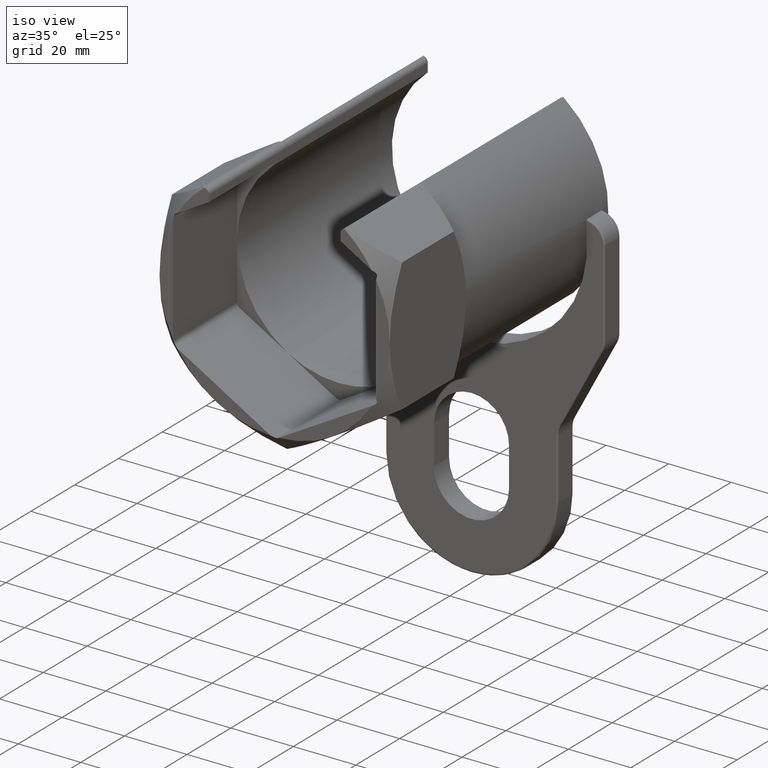
[diagram: clean part render]
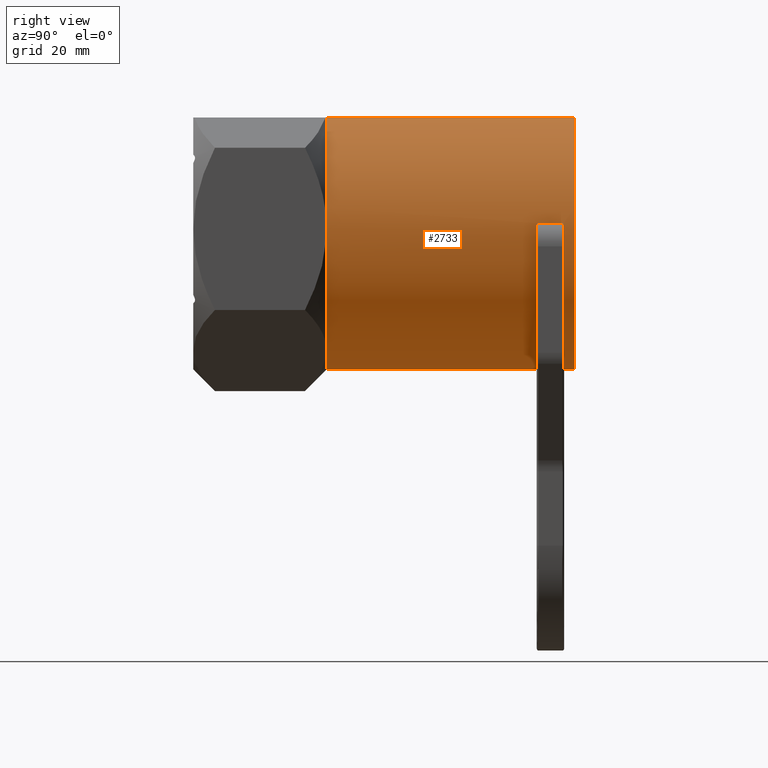
[diagram: tour spotlight — one face highlighted and labeled with its STEP entity id]
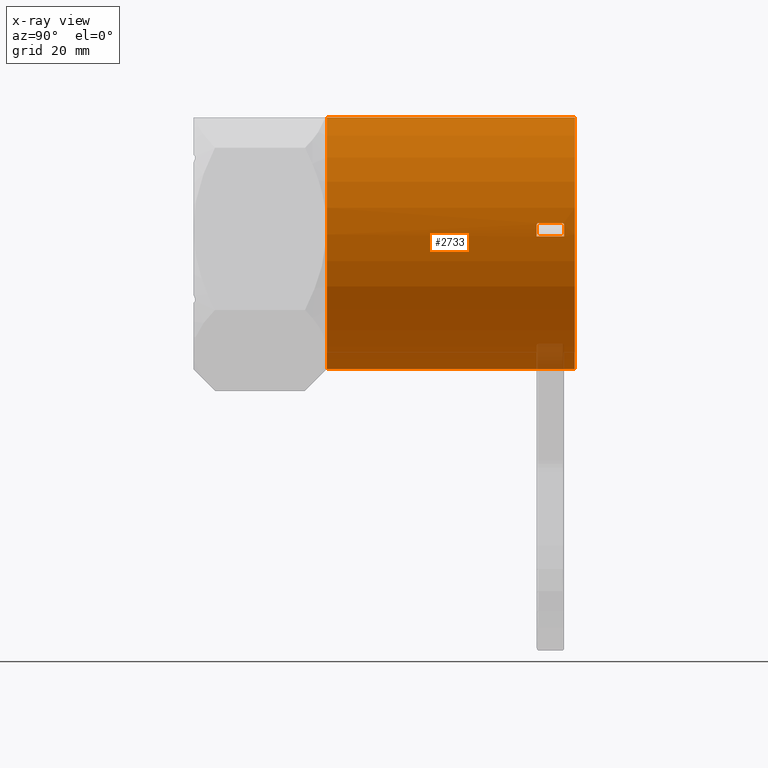
[diagram: x-ray of the same camera — body ghosted, this tour face saturated]
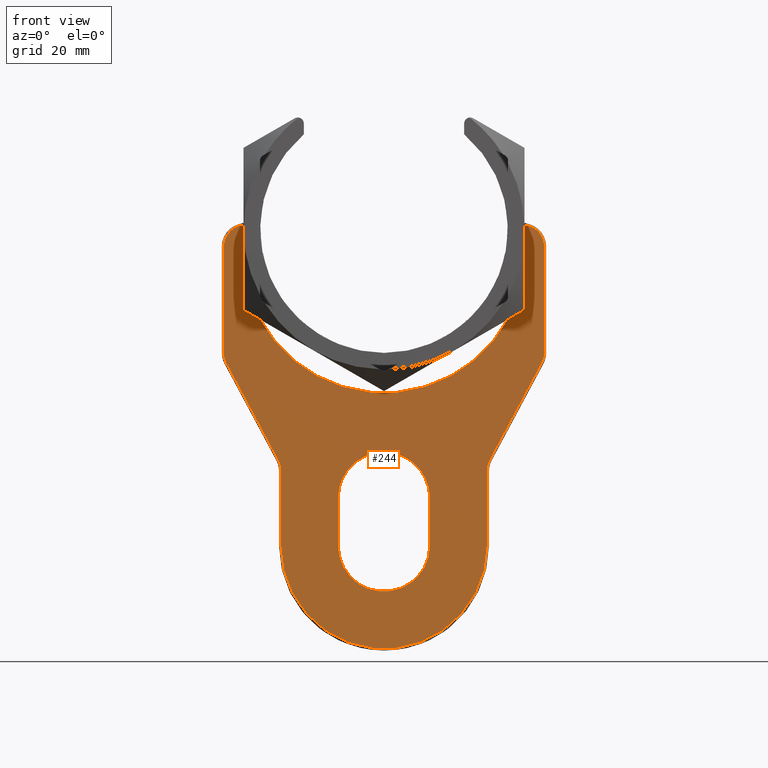
[diagram: tour spotlight — one face highlighted and labeled with its STEP entity id]
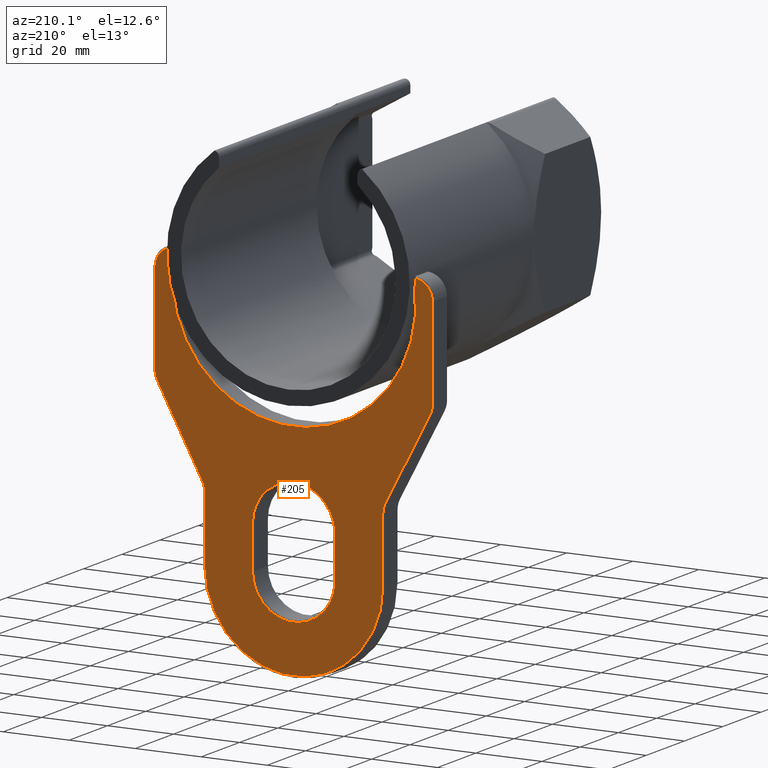
[diagram: tour spotlight — one face highlighted and labeled with its STEP entity id]
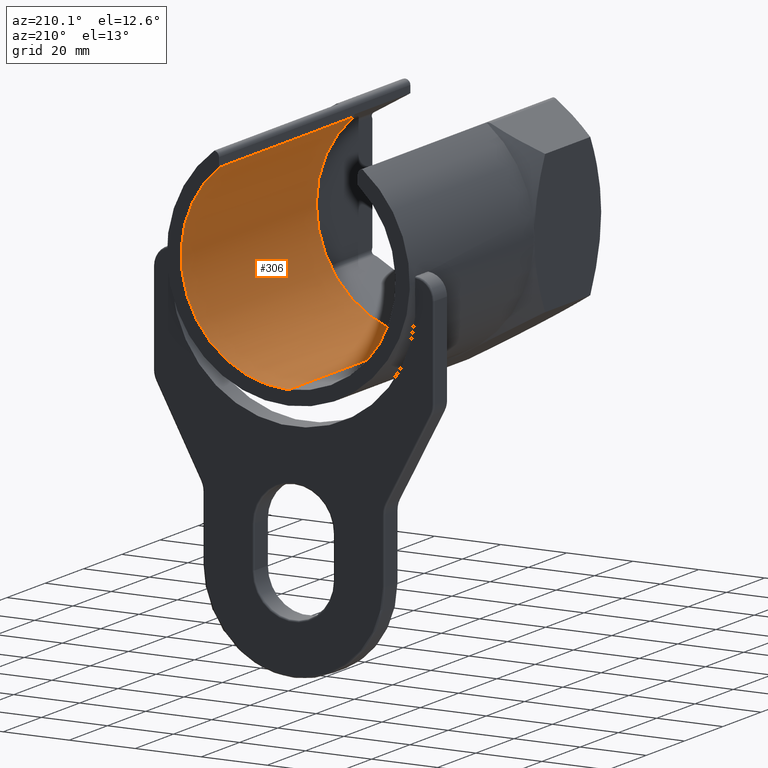
[diagram: tour spotlight — one face highlighted and labeled with its STEP entity id]
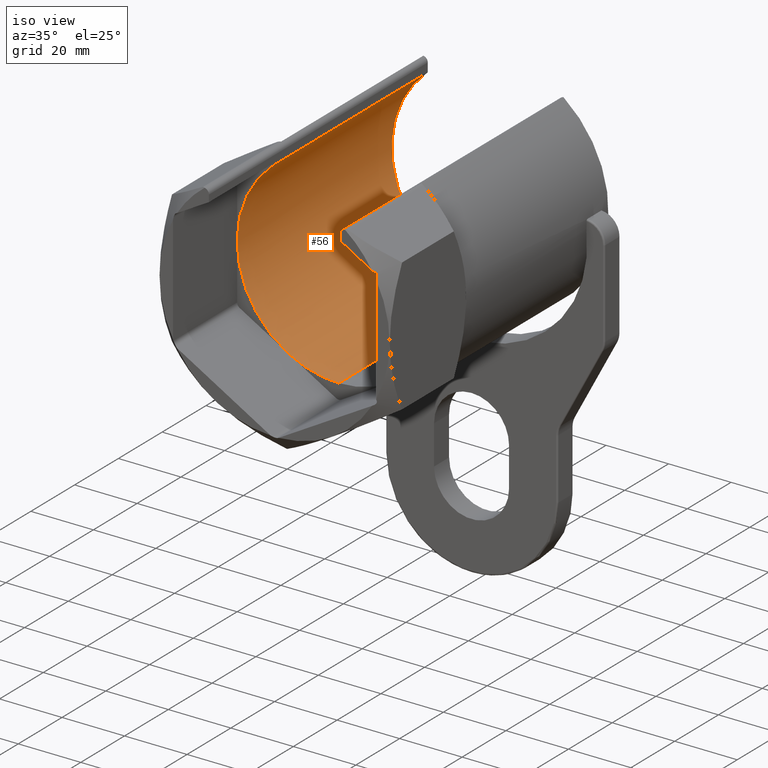
[diagram: tour spotlight — one face highlighted and labeled with its STEP entity id]
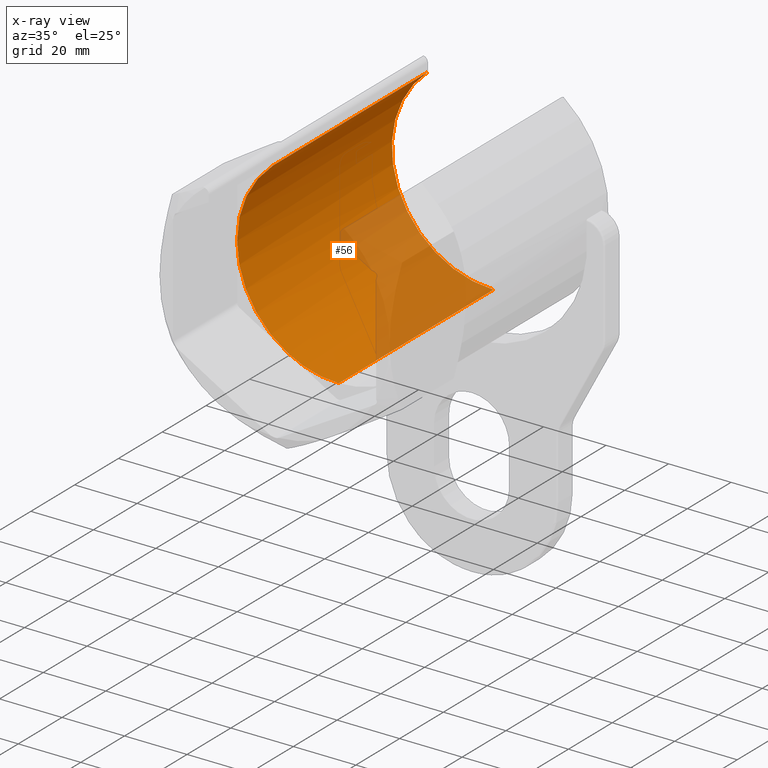
[diagram: x-ray of the same camera — body ghosted, this tour face saturated]
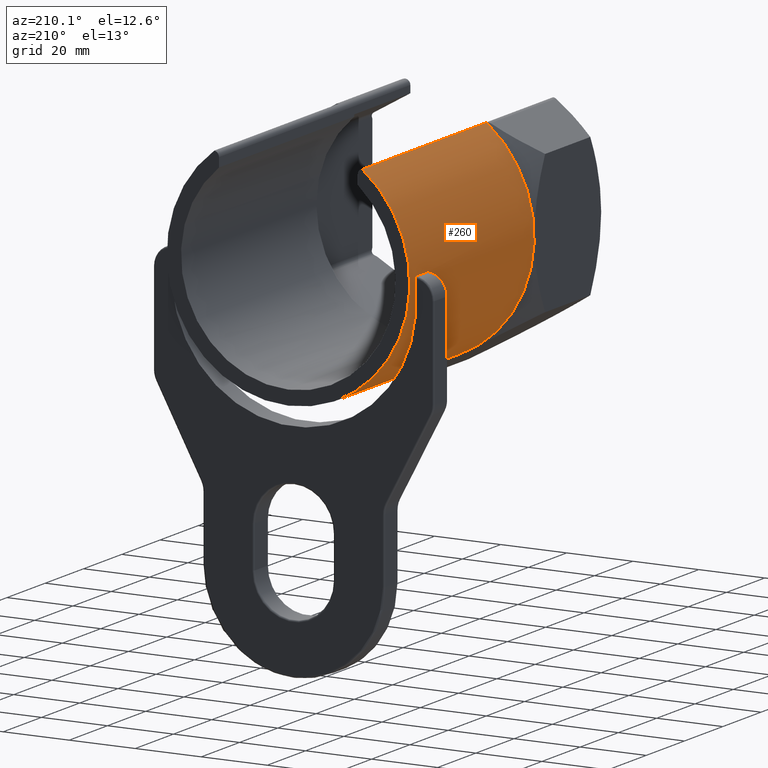
[diagram: tour spotlight — one face highlighted and labeled with its STEP entity id]
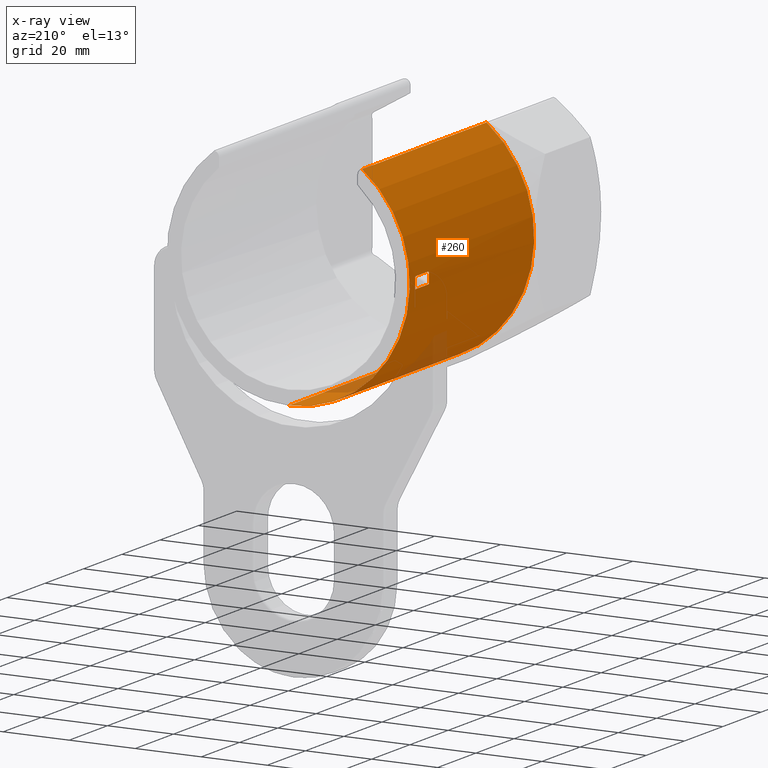
[diagram: x-ray of the same camera — body ghosted, this tour face saturated]
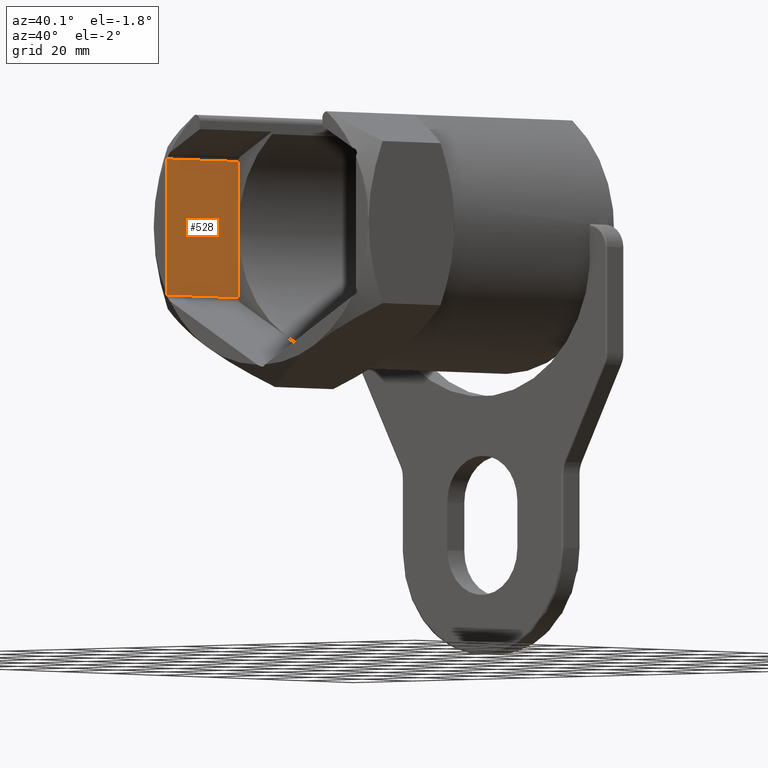
[diagram: tour spotlight — one face highlighted and labeled with its STEP entity id]
A machine part: a face-by-face anatomy tour. The part has 97 B-rep faces; the first image is the clean iso view, then the 7 largest visible faces are spotlighted one at a time (largest first), each with its STEP entity span.

Face 1 — right view, entity #2733. An x-ray twin of the same camera follows (body ghosted, this face saturated) — the face is partly hidden behind the body. In plain terms, the highlighted cylindrical surface (partial cylindrical patch) has radius 36.806 mm, axis along (0, -1, 0).
Definition (entity closure, byte-faithful):
#148 = VERTEX_POINT ( 'NONE', #823 ) ;
#151 = VERTEX_POINT ( 'NONE', #822 ) ;
#174 = EDGE_CURVE ( 'NONE', #151, #148, #910, .T. ) ;
#178 = VERTEX_POINT ( 'NONE', #898 ) ;
#179 = EDGE_CURVE ( 'NONE', #178, #181, #897, .T. ) ;
#181 = VERTEX_POINT ( 'NONE', #892 ) ;
#262 = VERTEX_POINT ( 'NONE', #1041 ) ;
#287 = VERTEX_POINT ( 'NONE', #1111 ) ;
#288 = EDGE_CURVE ( 'NONE', #287, #262, #1110, .T. ) ;
#822 = CARTESIAN_POINT ( 'NONE',  ( 36.75160049295902800, 97.19999999999998900, -1.999999999999975400 ) ) ;
#823 = CARTESIAN_POINT ( 'NONE',  ( 36.79245230451785200, 97.19999999999998900, 0.9977936729832336300 ) ) ;
#892 = CARTESIAN_POINT ( 'NONE',  ( 36.79245230451785200, 90.00000000000000000, 0.9977936729832336300 ) ) ;
#893 = DIRECTION ( 'NONE',  ( 0.0000000000000000000, 0.0000000000000000000, 1.000000000000000000 ) ) ;
#894 = DIRECTION ( 'NONE',  ( 0.0000000000000000000, -1.000000000000000000, 0.0000000000000000000 ) ) ;
#895 = CARTESIAN_POINT ( 'NONE',  ( 0.0000000000000000000, 90.00000000000000000, 0.0000000000000000000 ) ) ;
#896 = AXIS2_PLACEMENT_3D ( 'NONE', #895, #894, #893 ) ;
#897 = CIRCLE ( 'NONE', #896, 36.80597966083862400 ) ;
#898 = CARTESIAN_POINT ( 'NONE',  ( 36.75160049295902800, 90.00000000000000000, -2.000000000000002700 ) ) ;
#906 = DIRECTION ( 'NONE',  ( 0.0000000000000000000, 0.0000000000000000000, 1.000000000000000000 ) ) ;
#907 = DIRECTION ( 'NONE',  ( 0.0000000000000000000, -1.000000000000000000, 0.0000000000000000000 ) ) ;
#908 = CARTESIAN_POINT ( 'NONE',  ( 0.0000000000000000000, 97.19999999999998900, 0.0000000000000000000 ) ) ;
#909 = AXIS2_PLACEMENT_3D ( 'NONE', #908, #907, #906 ) ;
#910 = CIRCLE ( 'NONE', #909, 36.80597966083862400 ) ;
#1041 = CARTESIAN_POINT ( 'NONE',  ( 0.0000000000000000000, 35.00000000000000000, -36.80597966083862400 ) ) ;
#1107 = DIRECTION ( 'NONE',  ( 0.0000000000000000000, -1.000000000000000000, 0.0000000000000000000 ) ) ;
#1108 = VECTOR ( 'NONE', #1107, 1000.000000000000000 ) ;
#1109 = CARTESIAN_POINT ( 'NONE',  ( 0.0000000000000000000, 100.0000000000000000, -36.80597966083862400 ) ) ;
#1110 = LINE ( 'NONE', #1109, #1108 ) ;
#1111 = CARTESIAN_POINT ( 'NONE',  ( 0.0000000000000000000, 100.0000000000000000, -36.80597966083862400 ) ) ;
#1655 = DIRECTION ( 'NONE',  ( 0.0000000000000000000, 0.0000000000000000000, -1.000000000000000000 ) ) ;
#1656 = DIRECTION ( 'NONE',  ( 0.0000000000000000000, -1.000000000000000000, 0.0000000000000000000 ) ) ;
#1657 = AXIS2_PLACEMENT_3D ( 'NONE', #1667, #1656, #1655 ) ;
#1659 = CYLINDRICAL_SURFACE ( 'NONE', #1657, 36.80597966083862400 ) ;
#1660 = FACE_BOUND ( 'NONE', #2777, .T. ) ;
#1661 = FACE_OUTER_BOUND ( 'NONE', #2734, .T. ) ;
#1667 = CARTESIAN_POINT ( 'NONE',  ( 0.0000000000000000000, 100.0000000000000000, 0.0000000000000000000 ) ) ;
#1726 = DIRECTION ( 'NONE',  ( 0.0000000000000000000, 0.0000000000000000000, 1.000000000000000000 ) ) ;
#1727 = DIRECTION ( 'NONE',  ( 0.0000000000000000000, 1.000000000000000000, 0.0000000000000000000 ) ) ;
#1728 = CARTESIAN_POINT ( 'NONE',  ( 0.0000000000000000000, 35.00000000000000000, 0.0000000000000000000 ) ) ;
#1729 = AXIS2_PLACEMENT_3D ( 'NONE', #1728, #1727, #1726 ) ;
#1730 = CIRCLE ( 'NONE', #1729, 36.80597966083862400 ) ;
#1731 = DIRECTION ( 'NONE',  ( 0.0000000000000000000, 0.0000000000000000000, 1.000000000000000000 ) ) ;
#1732 = DIRECTION ( 'NONE',  ( 0.0000000000000000000, 1.000000000000000000, 0.0000000000000000000 ) ) ;
#1733 = CARTESIAN_POINT ( 'NONE',  ( 0.0000000000000000000, 100.0000000000000000, 0.0000000000000000000 ) ) ;
#1734 = AXIS2_PLACEMENT_3D ( 'NONE', #1733, #1732, #1731 ) ;
#1735 = CIRCLE ( 'NONE', #1734, 36.80597966083862400 ) ;
#1736 = CARTESIAN_POINT ( 'NONE',  ( 22.41460836996281700, 35.00000000000000000, 29.19358611776324600 ) ) ;
#1737 = CARTESIAN_POINT ( 'NONE',  ( 22.41460836996281700, 100.0000000000000000, 29.19358611776324600 ) ) ;
#1738 = DIRECTION ( 'NONE',  ( 0.0000000000000000000, -1.000000000000000000, 0.0000000000000000000 ) ) ;
#1739 = VECTOR ( 'NONE', #1738, 1000.000000000000000 ) ;
#1740 = CARTESIAN_POINT ( 'NONE',  ( 22.41460836996281700, 100.0000000000000000, 29.19358611776324600 ) ) ;
#1745 = LINE ( 'NONE', #1740, #1739 ) ;
#1863 = CARTESIAN_POINT ( 'NONE',  ( 36.78453787161014100, 90.05381784046700500, 1.259575666858624700 ) ) ;
#1864 = CARTESIAN_POINT ( 'NONE',  ( 36.78886356278116700, 89.99999999999998600, 1.130124246682779200 ) ) ;
#1865 = CARTESIAN_POINT ( 'NONE',  ( 36.79245230451785200, 90.00000000000000000, 0.9977936729832336300 ) ) ;
#1868 = B_SPLINE_CURVE_WITH_KNOTS ( 'NONE', 3,
 ( #1865, #1864, #1863, #1927, #1926, #1925 ),
 .UNSPECIFIED., .F., .F.,
 ( 4, 2, 4 ),
 ( 0.0000000000000000000, 0.0003915095229163967700, 0.0007830190458327935400 ),
 .UNSPECIFIED. ) ;
#1901 = DIRECTION ( 'NONE',  ( 0.0000000000000000000, -1.000000000000000000, 0.0000000000000000000 ) ) ;
#1902 = VECTOR ( 'NONE', #1901, 1000.000000000000000 ) ;
#1903 = CARTESIAN_POINT ( 'NONE',  ( 36.77540127305297800, 97.19999999999998900, 1.499999999999999600 ) ) ;
#1904 = LINE ( 'NONE', #1903, #1902 ) ;
#1905 = CARTESIAN_POINT ( 'NONE',  ( 36.79245230451785200, 97.19999999999998900, 0.9977936729832336300 ) ) ;
#1906 = CARTESIAN_POINT ( 'NONE',  ( 36.78886387674644700, 97.20000000000000300, 1.130112669588371000 ) ) ;
#1907 = CARTESIAN_POINT ( 'NONE',  ( 36.78452540959765600, 97.14595951367255100, 1.259931967193947700 ) ) ;
#1908 = CARTESIAN_POINT ( 'NONE',  ( 36.77770963548341100, 96.96175020788831500, 1.445272340897753000 ) ) ;
#1909 = CARTESIAN_POINT ( 'NONE',  ( 36.77540127305297800, 96.83238596470744100, 1.499999999999999100 ) ) ;
#1910 = CARTESIAN_POINT ( 'NONE',  ( 36.77540127305297800, 96.69999999999998900, 1.499999999999999600 ) ) ;
#1911 = CARTESIAN_POINT ( 'NONE',  ( 36.77540127305297800, 96.69999999999998900, 1.499999999999999600 ) ) ;
#1912 = CARTESIAN_POINT ( 'NONE',  ( 36.77540127305297800, 90.50000000000000000, 1.499999999999999600 ) ) ;
#1913 = B_SPLINE_CURVE_WITH_KNOTS ( 'NONE', 3,
 ( #1910, #1909, #1908, #1907, #1906, #1905 ),
 .UNSPECIFIED., .F., .F.,
 ( 4, 2, 4 ),
 ( 0.0000000000000000000, 0.0003915084009934324100, 0.0007830168019868648200 ),
 .UNSPECIFIED. ) ;
#1914 = DIRECTION ( 'NONE',  ( 0.0000000000000000000, 1.000000000000000000, 0.0000000000000000000 ) ) ;
#1915 = VECTOR ( 'NONE', #1914, 1000.000000000000000 ) ;
#1916 = CARTESIAN_POINT ( 'NONE',  ( 36.75160049295902800, -0.001000000000001000100, -2.000000000000002700 ) ) ;
#1917 = LINE ( 'NONE', #1916, #1915 ) ;
#1925 = CARTESIAN_POINT ( 'NONE',  ( 36.77540127305297800, 90.50000000000000000, 1.499999999999999600 ) ) ;
#1926 = CARTESIAN_POINT ( 'NONE',  ( 36.77540127305297800, 90.36760249372329700, 1.499999999999999300 ) ) ;
#1927 = CARTESIAN_POINT ( 'NONE',  ( 36.77771580360587200, 90.23796923445242200, 1.445121987121073200 ) ) ;
#2733 = ADVANCED_FACE ( 'NONE', ( #1661, #1660 ), #1659, .T. ) ;
#2734 = EDGE_LOOP ( 'NONE', ( #2785, #2786, #2780, #2782 ) ) ;
#2776 = EDGE_CURVE ( 'NONE', #2778, #2781, #1745, .T. ) ;
#2777 = EDGE_LOOP ( 'NONE', ( #2868, #2869, #2866, #2864, #2861, #2863 ) ) ;
#2778 = VERTEX_POINT ( 'NONE', #1737 ) ;
#2779 = EDGE_CURVE ( 'NONE', #2778, #287, #1735, .T. ) ;
#2780 = ORIENTED_EDGE ( 'NONE', *, *, #2776, .T. ) ;
#2781 = VERTEX_POINT ( 'NONE', #1736 ) ;
#2782 = ORIENTED_EDGE ( 'NONE', *, *, #2783, .T. ) ;
#2783 = EDGE_CURVE ( 'NONE', #2781, #262, #1730, .T. ) ;
#2785 = ORIENTED_EDGE ( 'NONE', *, *, #288, .F. ) ;
#2786 = ORIENTED_EDGE ( 'NONE', *, *, #2779, .F. ) ;
#2856 = EDGE_CURVE ( 'NONE', #181, #2870, #1868, .T. ) ;
#2861 = ORIENTED_EDGE ( 'NONE', *, *, #179, .T. ) ;
#2863 = ORIENTED_EDGE ( 'NONE', *, *, #2856, .T. ) ;
#2864 = ORIENTED_EDGE ( 'NONE', *, *, #2865, .F. ) ;
#2865 = EDGE_CURVE ( 'NONE', #178, #151, #1917, .T. ) ;
#2866 = ORIENTED_EDGE ( 'NONE', *, *, #174, .F. ) ;
#2867 = EDGE_CURVE ( 'NONE', #2871, #148, #1913, .T. ) ;
#2868 = ORIENTED_EDGE ( 'NONE', *, *, #2872, .F. ) ;
#2869 = ORIENTED_EDGE ( 'NONE', *, *, #2867, .T. ) ;
#2870 = VERTEX_POINT ( 'NONE', #1912 ) ;
#2871 = VERTEX_POINT ( 'NONE', #1911 ) ;
#2872 = EDGE_CURVE ( 'NONE', #2871, #2870, #1904, .T. ) ;

Face 2 — front view, entity #244. In plain terms, the highlighted planar face has unit normal (0, 1, 0).
Definition (entity closure, byte-faithful):
#142 = EDGE_LOOP ( 'NONE', ( #248, #243, #183, #185, #150, #171, #170, #230, #223, #226, #238, #228, #239, #352, #370, #356 ) ) ;
#146 = EDGE_CURVE ( 'NONE', #301, #157, #833, .T. ) ;
#150 = ORIENTED_EDGE ( 'NONE', *, *, #304, .F. ) ;
#155 = EDGE_CURVE ( 'NONE', #178, #261, #2796, .T. ) ;
#157 = VERTEX_POINT ( 'NONE', #880 ) ;
#165 = EDGE_CURVE ( 'NONE', #157, #232, #865, .T. ) ;
#170 = ORIENTED_EDGE ( 'NONE', *, *, #165, .T. ) ;
#171 = ORIENTED_EDGE ( 'NONE', *, *, #146, .T. ) ;
#177 = EDGE_CURVE ( 'NONE', #250, #181, #903, .T. ) ;
#178 = VERTEX_POINT ( 'NONE', #898 ) ;
#179 = EDGE_CURVE ( 'NONE', #178, #181, #897, .T. ) ;
#181 = VERTEX_POINT ( 'NONE', #892 ) ;
#183 = ORIENTED_EDGE ( 'NONE', *, *, #179, .F. ) ;
#185 = ORIENTED_EDGE ( 'NONE', *, *, #155, .T. ) ;
#221 = VERTEX_POINT ( 'NONE', #946 ) ;
#222 = EDGE_CURVE ( 'NONE', #229, #225, #1006, .T. ) ;
#223 = ORIENTED_EDGE ( 'NONE', *, *, #224, .T. ) ;
#224 = EDGE_CURVE ( 'NONE', #221, #229, #1001, .T. ) ;
#225 = VERTEX_POINT ( 'NONE', #997 ) ;
#226 = ORIENTED_EDGE ( 'NONE', *, *, #222, .T. ) ;
#227 = VERTEX_POINT ( 'NONE', #996 ) ;
#228 = ORIENTED_EDGE ( 'NONE', *, *, #233, .T. ) ;
#229 = VERTEX_POINT ( 'NONE', #995 ) ;
#230 = ORIENTED_EDGE ( 'NONE', *, *, #234, .T. ) ;
#231 = VERTEX_POINT ( 'NONE', #994 ) ;
#232 = VERTEX_POINT ( 'NONE', #993 ) ;
#233 = EDGE_CURVE ( 'NONE', #231, #235, #992, .T. ) ;
#234 = EDGE_CURVE ( 'NONE', #232, #221, #987, .T. ) ;
#235 = VERTEX_POINT ( 'NONE', #982 ) ;
#236 = EDGE_CURVE ( 'NONE', #235, #227, #981, .T. ) ;
#237 = EDGE_CURVE ( 'NONE', #225, #231, #1039, .T. ) ;
#238 = ORIENTED_EDGE ( 'NONE', *, *, #237, .T. ) ;
#239 = ORIENTED_EDGE ( 'NONE', *, *, #236, .T. ) ;
#243 = ORIENTED_EDGE ( 'NONE', *, *, #177, .T. ) ;
#244 = ADVANCED_FACE ( 'NONE', ( #1028, #1027 ), #1026, .F. ) ;
#246 = EDGE_CURVE ( 'NONE', #249, #250, #1020, .T. ) ;
#248 = ORIENTED_EDGE ( 'NONE', *, *, #246, .T. ) ;
#249 = VERTEX_POINT ( 'NONE', #1016 ) ;
#250 = VERTEX_POINT ( 'NONE', #1015 ) ;
#257 = VERTEX_POINT ( 'NONE', #1055 ) ;
#261 = VERTEX_POINT ( 'NONE', #1047 ) ;
#263 = EDGE_CURVE ( 'NONE', #266, #257, #1099, .T. ) ;
#266 = VERTEX_POINT ( 'NONE', #1090 ) ;
#301 = VERTEX_POINT ( 'NONE', #1153 ) ;
#304 = EDGE_CURVE ( 'NONE', #301, #261, #1152, .T. ) ;
#329 = ORIENTED_EDGE ( 'NONE', *, *, #332, .T. ) ;
#332 = EDGE_CURVE ( 'NONE', #357, #338, #1220, .T. ) ;
#336 = EDGE_CURVE ( 'NONE', #338, #266, #1214, .T. ) ;
#337 = ORIENTED_EDGE ( 'NONE', *, *, #336, .T. ) ;
#338 = VERTEX_POINT ( 'NONE', #1209 ) ;
#340 = EDGE_CURVE ( 'NONE', #257, #372, #1204, .T. ) ;
#352 = ORIENTED_EDGE ( 'NONE', *, *, #363, .T. ) ;
#353 = ORIENTED_EDGE ( 'NONE', *, *, #368, .T. ) ;
#356 = ORIENTED_EDGE ( 'NONE', *, *, #362, .T. ) ;
#357 = VERTEX_POINT ( 'NONE', #1224 ) ;
#358 = EDGE_LOOP ( 'NONE', ( #353, #329, #337, #371, #360 ) ) ;
#359 = VERTEX_POINT ( 'NONE', #1223 ) ;
#360 = ORIENTED_EDGE ( 'NONE', *, *, #340, .T. ) ;
#362 = EDGE_CURVE ( 'NONE', #365, #249, #1276, .T. ) ;
#363 = EDGE_CURVE ( 'NONE', #227, #359, #1271, .T. ) ;
#365 = VERTEX_POINT ( 'NONE', #1266 ) ;
#368 = EDGE_CURVE ( 'NONE', #372, #357, #1255, .T. ) ;
#370 = ORIENTED_EDGE ( 'NONE', *, *, #373, .T. ) ;
#371 = ORIENTED_EDGE ( 'NONE', *, *, #263, .T. ) ;
#372 = VERTEX_POINT ( 'NONE', #1250 ) ;
#373 = EDGE_CURVE ( 'NONE', #359, #365, #1312, .T. ) ;
#829 = DIRECTION ( 'NONE',  ( 1.239088197126294000E-015, 0.0000000000000000000, 1.000000000000000000 ) ) ;
#830 = DIRECTION ( 'NONE',  ( 0.0000000000000000000, -1.000000000000000000, 0.0000000000000000000 ) ) ;
#831 = CARTESIAN_POINT ( 'NONE',  ( -36.40000000000002000, 90.00000000000000000, -4.588437721139147400 ) ) ;
#832 = AXIS2_PLACEMENT_3D ( 'NONE', #831, #830, #829 ) ;
#833 = CIRCLE ( 'NONE', #832, 5.599999999999985400 ) ;
#862 = DIRECTION ( 'NONE',  ( 2.488792897033639900E-016, 0.0000000000000000000, -1.000000000000000000 ) ) ;
#863 = VECTOR ( 'NONE', #862, 1000.000000000000000 ) ;
#864 = CARTESIAN_POINT ( 'NONE',  ( -42.00000000000000000, 90.00000000000000000, -4.588437721139149200 ) ) ;
#865 = LINE ( 'NONE', #864, #863 ) ;
#880 = CARTESIAN_POINT ( 'NONE',  ( -42.00000000000000000, 90.00000000000000000, -4.588437721139148300 ) ) ;
#892 = CARTESIAN_POINT ( 'NONE',  ( 36.79245230451785200, 90.00000000000000000, 0.9977936729832336300 ) ) ;
#893 = DIRECTION ( 'NONE',  ( 0.0000000000000000000, 0.0000000000000000000, 1.000000000000000000 ) ) ;
#894 = DIRECTION ( 'NONE',  ( 0.0000000000000000000, -1.000000000000000000, 0.0000000000000000000 ) ) ;
#895 = CARTESIAN_POINT ( 'NONE',  ( 0.0000000000000000000, 90.00000000000000000, 0.0000000000000000000 ) ) ;
#896 = AXIS2_PLACEMENT_3D ( 'NONE', #895, #894, #893 ) ;
#897 = CIRCLE ( 'NONE', #896, 36.80597966083862400 ) ;
#898 = CARTESIAN_POINT ( 'NONE',  ( 36.75160049295902800, 90.00000000000000000, -2.000000000000002700 ) ) ;
#899 = DIRECTION ( 'NONE',  ( -1.239088197126294000E-015, 0.0000000000000000000, 1.000000000000000000 ) ) ;
#900 = DIRECTION ( 'NONE',  ( 0.0000000000000000000, -1.000000000000000000, 0.0000000000000000000 ) ) ;
#901 = CARTESIAN_POINT ( 'NONE',  ( 36.40000000000002000, 90.00000000000000000, -4.588437721139147400 ) ) ;
#902 = AXIS2_PLACEMENT_3D ( 'NONE', #901, #900, #899 ) ;
#903 = CIRCLE ( 'NONE', #902, 5.599999999999985400 ) ;
#946 = CARTESIAN_POINT ( 'NONE',  ( -41.33628783216118300, 90.00000000000000000, -35.11343736834788800 ) ) ;
#978 = DIRECTION ( 'NONE',  ( 1.782036778930994700E-016, 0.0000000000000000000, 1.000000000000000000 ) ) ;
#979 = VECTOR ( 'NONE', #978, 1000.000000000000000 ) ;
#980 = CARTESIAN_POINT ( 'NONE',  ( 27.00000000000001800, 90.00000000000000000, -4.588437721139158900 ) ) ;
#981 = LINE ( 'NONE', #980, #979 ) ;
#982 = CARTESIAN_POINT ( 'NONE',  ( 27.00000000000000000, 90.00000000000000000, -83.00000000000000000 ) ) ;
#983 = DIRECTION ( 'NONE',  ( -1.239088197126292000E-015, 0.0000000000000000000, 1.000000000000000000 ) ) ;
#984 = DIRECTION ( 'NONE',  ( 0.0000000000000000000, -1.000000000000000000, 0.0000000000000000000 ) ) ;
#985 = CARTESIAN_POINT ( 'NONE',  ( -36.40000000000000600, 90.00000000000000000, -32.46899745826154100 ) ) ;
#986 = AXIS2_PLACEMENT_3D ( 'NONE', #985, #984, #983 ) ;
#987 = CIRCLE ( 'NONE', #986, 5.599999999999994300 ) ;
#988 = DIRECTION ( 'NONE',  ( 0.0000000000000000000, 0.0000000000000000000, 1.000000000000000000 ) ) ;
#989 = DIRECTION ( 'NONE',  ( 0.0000000000000000000, -1.000000000000000000, 0.0000000000000000000 ) ) ;
#990 = CARTESIAN_POINT ( 'NONE',  ( 0.0000000000000000000, 90.00000000000000000, -83.00000000000000000 ) ) ;
#991 = AXIS2_PLACEMENT_3D ( 'NONE', #990, #989, #988 ) ;
#992 = CIRCLE ( 'NONE', #991, 26.99999999999999600 ) ;
#993 = CARTESIAN_POINT ( 'NONE',  ( -42.00000000000000000, 90.00000000000000000, -32.46899745826154100 ) ) ;
#994 = CARTESIAN_POINT ( 'NONE',  ( -27.00000000000000000, 90.00000000000000000, -83.00000000000000000 ) ) ;
#995 = CARTESIAN_POINT ( 'NONE',  ( -27.78223219781003900, 90.00000000000000000, -60.41434121913668800 ) ) ;
#996 = CARTESIAN_POINT ( 'NONE',  ( 27.00000000000000400, 90.00000000000000000, -63.53100254173845200 ) ) ;
#997 = CARTESIAN_POINT ( 'NONE',  ( -27.00000000000000400, 90.00000000000000000, -63.53100254173845200 ) ) ;
#998 = DIRECTION ( 'NONE',  ( 0.4722214125154191000, 0.0000000000000000000, -0.8814799700287819800 ) ) ;
#999 = VECTOR ( 'NONE', #998, 1000.000000000000000 ) ;
#1000 = CARTESIAN_POINT ( 'NONE',  ( -52.94167444226169300, 90.00000000000000000, -13.45004902949361600 ) ) ;
#1001 = LINE ( 'NONE', #1000, #999 ) ;
#1002 = DIRECTION ( 'NONE',  ( 0.0000000000000000000, 0.0000000000000000000, 1.000000000000000000 ) ) ;
#1003 = DIRECTION ( 'NONE',  ( 0.0000000000000000000, 1.000000000000000000, 0.0000000000000000000 ) ) ;
#1004 = CARTESIAN_POINT ( 'NONE',  ( -33.59999999999999400, 90.00000000000000000, -63.53100254173845200 ) ) ;
#1005 = AXIS2_PLACEMENT_3D ( 'NONE', #1004, #1003, #1002 ) ;
#1006 = CIRCLE ( 'NONE', #1005, 6.599999999999988100 ) ;
#1015 = CARTESIAN_POINT ( 'NONE',  ( 42.00000000000000000, 90.00000000000000000, -4.588437721139148300 ) ) ;
#1016 = CARTESIAN_POINT ( 'NONE',  ( 42.00000000000000000, 90.00000000000000000, -32.46899745826154100 ) ) ;
#1017 = DIRECTION ( 'NONE',  ( 2.488792897033639900E-016, 0.0000000000000000000, 1.000000000000000000 ) ) ;
#1018 = VECTOR ( 'NONE', #1017, 1000.000000000000000 ) ;
#1019 = CARTESIAN_POINT ( 'NONE',  ( 42.00000000000000000, 90.00000000000000000, -4.588437721139166900 ) ) ;
#1020 = LINE ( 'NONE', #1019, #1018 ) ;
#1022 = DIRECTION ( 'NONE',  ( 0.0000000000000000000, 0.0000000000000000000, 1.000000000000000000 ) ) ;
#1023 = DIRECTION ( 'NONE',  ( 0.0000000000000000000, 1.000000000000000000, 0.0000000000000000000 ) ) ;
#1024 = CARTESIAN_POINT ( 'NONE',  ( -36.40000000000002000, 90.00000000000000000, -4.588437721139147400 ) ) ;
#1025 = AXIS2_PLACEMENT_3D ( 'NONE', #1024, #1023, #1022 ) ;
#1026 = PLANE ( 'NONE',  #1025 ) ;
#1027 = FACE_BOUND ( 'NONE', #358, .T. ) ;
#1028 = FACE_OUTER_BOUND ( 'NONE', #142, .T. ) ;
#1036 = DIRECTION ( 'NONE',  ( 1.782036778930994700E-016, 0.0000000000000000000, -1.000000000000000000 ) ) ;
#1037 = VECTOR ( 'NONE', #1036, 1000.000000000000000 ) ;
#1038 = CARTESIAN_POINT ( 'NONE',  ( -27.00000000000001400, 90.00000000000000000, -4.588437721139145600 ) ) ;
#1039 = LINE ( 'NONE', #1038, #1037 ) ;
#1047 = CARTESIAN_POINT ( 'NONE',  ( -36.75160049295902800, 90.00000000000000000, -1.999999999999975400 ) ) ;
#1055 = CARTESIAN_POINT ( 'NONE',  ( 12.00000000000000000, 90.00000000000000000, -70.50000000000000000 ) ) ;
#1090 = CARTESIAN_POINT ( 'NONE',  ( 0.0000000000000000000, 90.00000000000000000, -58.50000000000000700 ) ) ;
#1095 = DIRECTION ( 'NONE',  ( 0.0000000000000000000, 0.0000000000000000000, 1.000000000000000000 ) ) ;
#1096 = DIRECTION ( 'NONE',  ( 0.0000000000000000000, 1.000000000000000000, 0.0000000000000000000 ) ) ;
#1097 = CARTESIAN_POINT ( 'NONE',  ( 0.0000000000000000000, 90.00000000000000000, -70.50000000000000000 ) ) ;
#1098 = AXIS2_PLACEMENT_3D ( 'NONE', #1097, #1096, #1095 ) ;
#1099 = CIRCLE ( 'NONE', #1098, 11.99999999999999600 ) ;
#1141 = DIRECTION ( 'NONE',  ( 0.0000000000000000000, 0.0000000000000000000, 1.000000000000000000 ) ) ;
#1142 = DIRECTION ( 'NONE',  ( 0.0000000000000000000, -1.000000000000000000, 0.0000000000000000000 ) ) ;
#1143 = CARTESIAN_POINT ( 'NONE',  ( 0.0000000000000000000, 90.00000000000000000, 0.0000000000000000000 ) ) ;
#1144 = AXIS2_PLACEMENT_3D ( 'NONE', #1143, #1142, #1141 ) ;
#1152 = CIRCLE ( 'NONE', #1144, 36.80597966083862400 ) ;
#1153 = CARTESIAN_POINT ( 'NONE',  ( -36.79245230451785200, 90.00000000000000000, 0.9977936729832336300 ) ) ;
#1201 = DIRECTION ( 'NONE',  ( 0.0000000000000000000, 0.0000000000000000000, -1.000000000000000000 ) ) ;
#1202 = VECTOR ( 'NONE', #1201, 1000.000000000000000 ) ;
#1203 = CARTESIAN_POINT ( 'NONE',  ( 12.00000000000000000, 90.00000000000000000, -83.00000000000000000 ) ) ;
#1204 = LINE ( 'NONE', #1203, #1202 ) ;
#1209 = CARTESIAN_POINT ( 'NONE',  ( -12.00000000000000000, 90.00000000000000000, -70.50000000000000000 ) ) ;
#1210 = DIRECTION ( 'NONE',  ( 0.0000000000000000000, 0.0000000000000000000, 1.000000000000000000 ) ) ;
#1211 = DIRECTION ( 'NONE',  ( 0.0000000000000000000, 1.000000000000000000, 0.0000000000000000000 ) ) ;
#1212 = CARTESIAN_POINT ( 'NONE',  ( 0.0000000000000000000, 90.00000000000000000, -70.50000000000000000 ) ) ;
#1213 = AXIS2_PLACEMENT_3D ( 'NONE', #1212, #1211, #1210 ) ;
#1214 = CIRCLE ( 'NONE', #1213, 11.99999999999999600 ) ;
#1217 = DIRECTION ( 'NONE',  ( 0.0000000000000000000, 0.0000000000000000000, 1.000000000000000000 ) ) ;
#1218 = VECTOR ( 'NONE', #1217, 1000.000000000000000 ) ;
#1219 = CARTESIAN_POINT ( 'NONE',  ( -12.00000000000000000, 90.00000000000000000, -83.00000000000000000 ) ) ;
#1220 = LINE ( 'NONE', #1219, #1218 ) ;
#1223 = CARTESIAN_POINT ( 'NONE',  ( 27.78223219781003900, 90.00000000000000000, -60.41434121913668800 ) ) ;
#1224 = CARTESIAN_POINT ( 'NONE',  ( -12.00000000000000000, 90.00000000000000000, -83.00000000000000000 ) ) ;
#1250 = CARTESIAN_POINT ( 'NONE',  ( 12.00000000000000000, 90.00000000000000000, -83.00000000000000000 ) ) ;
#1251 = DIRECTION ( 'NONE',  ( 0.0000000000000000000, 0.0000000000000000000, 1.000000000000000000 ) ) ;
#1252 = DIRECTION ( 'NONE',  ( 0.0000000000000000000, 1.000000000000000000, 0.0000000000000000000 ) ) ;
#1253 = CARTESIAN_POINT ( 'NONE',  ( 0.0000000000000000000, 90.00000000000000000, -83.00000000000000000 ) ) ;
#1254 = AXIS2_PLACEMENT_3D ( 'NONE', #1253, #1252, #1251 ) ;
#1255 = CIRCLE ( 'NONE', #1254, 11.99999999999999600 ) ;
#1266 = CARTESIAN_POINT ( 'NONE',  ( 41.33628783216118300, 90.00000000000000000, -35.11343736834788100 ) ) ;
#1267 = DIRECTION ( 'NONE',  ( 0.0000000000000000000, 0.0000000000000000000, 1.000000000000000000 ) ) ;
#1268 = DIRECTION ( 'NONE',  ( 0.0000000000000000000, 1.000000000000000000, 0.0000000000000000000 ) ) ;
#1269 = CARTESIAN_POINT ( 'NONE',  ( 33.59999999999999400, 90.00000000000000000, -63.53100254173845200 ) ) ;
#1270 = AXIS2_PLACEMENT_3D ( 'NONE', #1269, #1268, #1267 ) ;
#1271 = CIRCLE ( 'NONE', #1270, 6.599999999999988100 ) ;
#1272 = DIRECTION ( 'NONE',  ( -4.956352788505168200E-015, 0.0000000000000000000, 1.000000000000000000 ) ) ;
#1273 = DIRECTION ( 'NONE',  ( 0.0000000000000000000, -1.000000000000000000, 0.0000000000000000000 ) ) ;
#1274 = CARTESIAN_POINT ( 'NONE',  ( 36.40000000000000600, 90.00000000000000000, -32.46899745826154100 ) ) ;
#1275 = AXIS2_PLACEMENT_3D ( 'NONE', #1274, #1273, #1272 ) ;
#1276 = CIRCLE ( 'NONE', #1275, 5.599999999999994300 ) ;
#1309 = DIRECTION ( 'NONE',  ( 0.4722214125154191000, 0.0000000000000000000, 0.8814799700287819800 ) ) ;
#1310 = VECTOR ( 'NONE', #1309, 1000.000000000000000 ) ;
#1311 = CARTESIAN_POINT ( 'NONE',  ( 36.70777949677110300, 90.00000000000000000, -43.75331959440941200 ) ) ;
#1312 = LINE ( 'NONE', #1311, #1310 ) ;
#2795 = CARTESIAN_POINT ( 'NONE',  ( 0.0000000000000000000, 90.00000000000000000, -6.000000000000000000 ) ) ;
#2796 = CIRCLE ( 'NONE', #2798, 36.96863723203854600 ) ;
#2797 = DIRECTION ( 'NONE',  ( 0.0000000000000000000, 0.0000000000000000000, 1.000000000000000000 ) ) ;
#2798 = AXIS2_PLACEMENT_3D ( 'NONE', #2795, #2799, #2797 ) ;
#2799 = DIRECTION ( 'NONE',  ( 0.0000000000000000000, 1.000000000000000000, 0.0000000000000000000 ) ) ;

Face 3 — auxiliary view, entity #205. In plain terms, the highlighted planar face has unit normal (0, 1, 0).
Definition (entity closure, byte-faithful):
#143 = VERTEX_POINT ( 'NONE', #840 ) ;
#144 = VERTEX_POINT ( 'NONE', #839 ) ;
#145 = EDGE_CURVE ( 'NONE', #148, #143, #838, .T. ) ;
#147 = EDGE_CURVE ( 'NONE', #167, #245, #828, .T. ) ;
#148 = VERTEX_POINT ( 'NONE', #823 ) ;
#149 = ORIENTED_EDGE ( 'NONE', *, *, #145, .T. ) ;
#151 = VERTEX_POINT ( 'NONE', #822 ) ;
#152 = ORIENTED_EDGE ( 'NONE', *, *, #164, .T. ) ;
#153 = ORIENTED_EDGE ( 'NONE', *, *, #147, .T. ) ;
#154 = ORIENTED_EDGE ( 'NONE', *, *, #174, .T. ) ;
#158 = VERTEX_POINT ( 'NONE', #879 ) ;
#159 = ORIENTED_EDGE ( 'NONE', *, *, #168, .T. ) ;
#160 = EDGE_CURVE ( 'NONE', #158, #144, #878, .T. ) ;
#161 = ORIENTED_EDGE ( 'NONE', *, *, #240, .T. ) ;
#162 = ORIENTED_EDGE ( 'NONE', *, *, #160, .T. ) ;
#163 = EDGE_CURVE ( 'NONE', #144, #167, #873, .T. ) ;
#164 = EDGE_CURVE ( 'NONE', #143, #173, #869, .T. ) ;
#167 = VERTEX_POINT ( 'NONE', #856 ) ;
#168 = EDGE_CURVE ( 'NONE', #265, #151, #855, .T. ) ;
#169 = ORIENTED_EDGE ( 'NONE', *, *, #163, .T. ) ;
#172 = ORIENTED_EDGE ( 'NONE', *, *, #198, .T. ) ;
#173 = VERTEX_POINT ( 'NONE', #911 ) ;
#174 = EDGE_CURVE ( 'NONE', #151, #148, #910, .T. ) ;
#175 = VERTEX_POINT ( 'NONE', #905 ) ;
#176 = VERTEX_POINT ( 'NONE', #904 ) ;
#180 = ORIENTED_EDGE ( 'NONE', *, *, #182, .T. ) ;
#182 = EDGE_CURVE ( 'NONE', #176, #184, #891, .T. ) ;
#184 = VERTEX_POINT ( 'NONE', #886 ) ;
#186 = EDGE_CURVE ( 'NONE', #190, #176, #885, .T. ) ;
#187 = ORIENTED_EDGE ( 'NONE', *, *, #189, .T. ) ;
#188 = EDGE_LOOP ( 'NONE', ( #207, #211, #214, #219, #217 ) ) ;
#189 = EDGE_CURVE ( 'NONE', #201, #192, #945, .T. ) ;
#190 = VERTEX_POINT ( 'NONE', #940 ) ;
#191 = ORIENTED_EDGE ( 'NONE', *, *, #194, .T. ) ;
#192 = VERTEX_POINT ( 'NONE', #939 ) ;
#193 = EDGE_CURVE ( 'NONE', #195, #201, #938, .T. ) ;
#194 = EDGE_CURVE ( 'NONE', #192, #158, #934, .T. ) ;
#195 = VERTEX_POINT ( 'NONE', #930 ) ;
#197 = ORIENTED_EDGE ( 'NONE', *, *, #193, .T. ) ;
#198 = EDGE_CURVE ( 'NONE', #173, #190, #925, .T. ) ;
#201 = VERTEX_POINT ( 'NONE', #920 ) ;
#202 = ORIENTED_EDGE ( 'NONE', *, *, #186, .T. ) ;
#203 = EDGE_LOOP ( 'NONE', ( #154, #149, #152, #172, #202, #180, #213, #220, #197, #187, #191, #162, #169, #153, #161, #159 ) ) ;
#204 = VERTEX_POINT ( 'NONE', #919 ) ;
#205 = ADVANCED_FACE ( 'NONE', ( #918, #917 ), #916, .T. ) ;
#206 = EDGE_CURVE ( 'NONE', #175, #195, #974, .T. ) ;
#207 = ORIENTED_EDGE ( 'NONE', *, *, #208, .T. ) ;
#208 = EDGE_CURVE ( 'NONE', #210, #204, #970, .T. ) ;
#209 = EDGE_CURVE ( 'NONE', #204, #212, #965, .T. ) ;
#210 = VERTEX_POINT ( 'NONE', #961 ) ;
#211 = ORIENTED_EDGE ( 'NONE', *, *, #209, .T. ) ;
#212 = VERTEX_POINT ( 'NONE', #960 ) ;
#213 = ORIENTED_EDGE ( 'NONE', *, *, #218, .T. ) ;
#214 = ORIENTED_EDGE ( 'NONE', *, *, #216, .T. ) ;
#215 = EDGE_CURVE ( 'NONE', #272, #210, #959, .T. ) ;
#216 = EDGE_CURVE ( 'NONE', #212, #292, #955, .T. ) ;
#217 = ORIENTED_EDGE ( 'NONE', *, *, #215, .T. ) ;
#218 = EDGE_CURVE ( 'NONE', #184, #175, #950, .T. ) ;
#219 = ORIENTED_EDGE ( 'NONE', *, *, #282, .T. ) ;
#220 = ORIENTED_EDGE ( 'NONE', *, *, #206, .T. ) ;
#240 = EDGE_CURVE ( 'NONE', #245, #265, #1035, .T. ) ;
#245 = VERTEX_POINT ( 'NONE', #1021 ) ;
#265 = VERTEX_POINT ( 'NONE', #1091 ) ;
#272 = VERTEX_POINT ( 'NONE', #1085 ) ;
#282 = EDGE_CURVE ( 'NONE', #292, #272, #1071, .T. ) ;
#292 = VERTEX_POINT ( 'NONE', #1100 ) ;
#822 = CARTESIAN_POINT ( 'NONE',  ( 36.75160049295902800, 97.19999999999998900, -1.999999999999975400 ) ) ;
#823 = CARTESIAN_POINT ( 'NONE',  ( 36.79245230451785200, 97.19999999999998900, 0.9977936729832336300 ) ) ;
#824 = DIRECTION ( 'NONE',  ( 0.0000000000000000000, 0.0000000000000000000, 1.000000000000000000 ) ) ;
#825 = DIRECTION ( 'NONE',  ( 0.0000000000000000000, 1.000000000000000000, 0.0000000000000000000 ) ) ;
#826 = CARTESIAN_POINT ( 'NONE',  ( -36.40000000000002000, 97.19999999999998900, -4.588437721139147400 ) ) ;
#827 = AXIS2_PLACEMENT_3D ( 'NONE', #826, #825, #824 ) ;
#828 = CIRCLE ( 'NONE', #827, 5.599999999999985400 ) ;
#834 = DIRECTION ( 'NONE',  ( 0.0000000000000000000, 0.0000000000000000000, 1.000000000000000000 ) ) ;
#835 = DIRECTION ( 'NONE',  ( 0.0000000000000000000, 1.000000000000000000, 0.0000000000000000000 ) ) ;
#836 = CARTESIAN_POINT ( 'NONE',  ( 36.40000000000002000, 97.19999999999998900, -4.588437721139147400 ) ) ;
#837 = AXIS2_PLACEMENT_3D ( 'NONE', #836, #835, #834 ) ;
#838 = CIRCLE ( 'NONE', #837, 5.599999999999985400 ) ;
#839 = CARTESIAN_POINT ( 'NONE',  ( -42.00000000000000000, 97.19999999999998900, -32.46899745826154100 ) ) ;
#840 = CARTESIAN_POINT ( 'NONE',  ( 42.00000000000000000, 97.19999999999998900, -4.588437721139148300 ) ) ;
#853 = CARTESIAN_POINT ( 'NONE',  ( 0.0000000000000000000, 97.19999999999998900, -6.000000000000000000 ) ) ;
#854 = AXIS2_PLACEMENT_3D ( 'NONE', #853, #913, #912 ) ;
#855 = CIRCLE ( 'NONE', #854, 36.96863723203854600 ) ;
#856 = CARTESIAN_POINT ( 'NONE',  ( -42.00000000000000000, 97.19999999999998900, -4.588437721139148300 ) ) ;
#866 = DIRECTION ( 'NONE',  ( -2.488792897033639900E-016, 0.0000000000000000000, -1.000000000000000000 ) ) ;
#867 = VECTOR ( 'NONE', #866, 1000.000000000000000 ) ;
#868 = CARTESIAN_POINT ( 'NONE',  ( 41.99999999999999300, 97.19999999999998900, -32.46899745826154100 ) ) ;
#869 = LINE ( 'NONE', #868, #867 ) ;
#870 = DIRECTION ( 'NONE',  ( -2.488792897033639900E-016, 0.0000000000000000000, 1.000000000000000000 ) ) ;
#871 = VECTOR ( 'NONE', #870, 1000.000000000000000 ) ;
#872 = CARTESIAN_POINT ( 'NONE',  ( -42.00000000000000000, 97.19999999999998900, -4.588437721139148300 ) ) ;
#873 = LINE ( 'NONE', #872, #871 ) ;
#874 = DIRECTION ( 'NONE',  ( 0.0000000000000000000, 0.0000000000000000000, 1.000000000000000000 ) ) ;
#875 = DIRECTION ( 'NONE',  ( 0.0000000000000000000, 1.000000000000000000, 0.0000000000000000000 ) ) ;
#876 = CARTESIAN_POINT ( 'NONE',  ( -36.40000000000000600, 97.19999999999998900, -32.46899745826154100 ) ) ;
#877 = AXIS2_PLACEMENT_3D ( 'NONE', #876, #875, #874 ) ;
#878 = CIRCLE ( 'NONE', #877, 5.599999999999994300 ) ;
#879 = CARTESIAN_POINT ( 'NONE',  ( -41.33628783216118300, 97.19999999999998900, -35.11343736834788800 ) ) ;
#882 = DIRECTION ( 'NONE',  ( -0.4722214125154191000, 0.0000000000000000000, -0.8814799700287819800 ) ) ;
#883 = VECTOR ( 'NONE', #882, 1000.000000000000000 ) ;
#884 = CARTESIAN_POINT ( 'NONE',  ( 27.78223219781005000, 97.19999999999998900, -60.41434121913668800 ) ) ;
#885 = LINE ( 'NONE', #884, #883 ) ;
#886 = CARTESIAN_POINT ( 'NONE',  ( 27.00000000000000400, 97.19999999999998900, -63.53100254173845200 ) ) ;
#887 = DIRECTION ( 'NONE',  ( 0.0000000000000000000, 0.0000000000000000000, 1.000000000000000000 ) ) ;
#888 = DIRECTION ( 'NONE',  ( 0.0000000000000000000, -1.000000000000000000, 0.0000000000000000000 ) ) ;
#889 = CARTESIAN_POINT ( 'NONE',  ( 33.59999999999999400, 97.19999999999998900, -63.53100254173845200 ) ) ;
#890 = AXIS2_PLACEMENT_3D ( 'NONE', #889, #888, #887 ) ;
#891 = CIRCLE ( 'NONE', #890, 6.599999999999988100 ) ;
#904 = CARTESIAN_POINT ( 'NONE',  ( 27.78223219781005000, 97.19999999999998900, -60.41434121913668800 ) ) ;
#905 = CARTESIAN_POINT ( 'NONE',  ( 27.00000000000000400, 97.19999999999998900, -83.00000000000000000 ) ) ;
#906 = DIRECTION ( 'NONE',  ( 0.0000000000000000000, 0.0000000000000000000, 1.000000000000000000 ) ) ;
#907 = DIRECTION ( 'NONE',  ( 0.0000000000000000000, -1.000000000000000000, 0.0000000000000000000 ) ) ;
#908 = CARTESIAN_POINT ( 'NONE',  ( 0.0000000000000000000, 97.19999999999998900, 0.0000000000000000000 ) ) ;
#909 = AXIS2_PLACEMENT_3D ( 'NONE', #908, #907, #906 ) ;
#910 = CIRCLE ( 'NONE', #909, 36.80597966083862400 ) ;
#911 = CARTESIAN_POINT ( 'NONE',  ( 42.00000000000000000, 97.19999999999998900, -32.46899745826154100 ) ) ;
#912 = DIRECTION ( 'NONE',  ( 0.0000000000000000000, 0.0000000000000000000, 1.000000000000000000 ) ) ;
#913 = DIRECTION ( 'NONE',  ( 0.0000000000000000000, -1.000000000000000000, 0.0000000000000000000 ) ) ;
#914 = AXIS2_PLACEMENT_3D ( 'NONE', #977, #976, #975 ) ;
#915 = CARTESIAN_POINT ( 'NONE',  ( 0.0000000000000000000, 97.19999999999998900, -83.00000000000000000 ) ) ;
#916 = PLANE ( 'NONE',  #914 ) ;
#917 = FACE_OUTER_BOUND ( 'NONE', #203, .T. ) ;
#918 = FACE_BOUND ( 'NONE', #188, .T. ) ;
#919 = CARTESIAN_POINT ( 'NONE',  ( 12.50000000000000000, 97.19999999999998900, -83.00000000000000000 ) ) ;
#920 = CARTESIAN_POINT ( 'NONE',  ( -27.00000000000000400, 97.19999999999998900, -63.53100254173845200 ) ) ;
#921 = DIRECTION ( 'NONE',  ( 0.0000000000000000000, 0.0000000000000000000, 1.000000000000000000 ) ) ;
#922 = DIRECTION ( 'NONE',  ( 0.0000000000000000000, 1.000000000000000000, 0.0000000000000000000 ) ) ;
#923 = CARTESIAN_POINT ( 'NONE',  ( 36.40000000000000600, 97.19999999999998900, -32.46899745826154100 ) ) ;
#924 = AXIS2_PLACEMENT_3D ( 'NONE', #923, #922, #921 ) ;
#925 = CIRCLE ( 'NONE', #924, 5.599999999999994300 ) ;
#930 = CARTESIAN_POINT ( 'NONE',  ( -27.00000000000000000, 97.19999999999998900, -83.00000000000000000 ) ) ;
#931 = DIRECTION ( 'NONE',  ( -0.4722214125154191000, 0.0000000000000000000, 0.8814799700287819800 ) ) ;
#932 = VECTOR ( 'NONE', #931, 1000.000000000000000 ) ;
#933 = CARTESIAN_POINT ( 'NONE',  ( -41.33628783216118300, 97.19999999999998900, -35.11343736834788800 ) ) ;
#934 = LINE ( 'NONE', #933, #932 ) ;
#935 = DIRECTION ( 'NONE',  ( -1.782036778930994700E-016, 0.0000000000000000000, 1.000000000000000000 ) ) ;
#936 = VECTOR ( 'NONE', #935, 1000.000000000000000 ) ;
#937 = CARTESIAN_POINT ( 'NONE',  ( -27.00000000000000400, 97.19999999999998900, -63.53100254173845200 ) ) ;
#938 = LINE ( 'NONE', #937, #936 ) ;
#939 = CARTESIAN_POINT ( 'NONE',  ( -27.78223219781003900, 97.19999999999998900, -60.41434121913668800 ) ) ;
#940 = CARTESIAN_POINT ( 'NONE',  ( 41.33628783216119700, 97.19999999999998900, -35.11343736834788800 ) ) ;
#941 = DIRECTION ( 'NONE',  ( 0.0000000000000000000, 0.0000000000000000000, 1.000000000000000000 ) ) ;
#942 = DIRECTION ( 'NONE',  ( 0.0000000000000000000, -1.000000000000000000, 0.0000000000000000000 ) ) ;
#943 = CARTESIAN_POINT ( 'NONE',  ( -33.59999999999999400, 97.19999999999998900, -63.53100254173845200 ) ) ;
#944 = AXIS2_PLACEMENT_3D ( 'NONE', #943, #942, #941 ) ;
#945 = CIRCLE ( 'NONE', #944, 6.599999999999988100 ) ;
#947 = DIRECTION ( 'NONE',  ( -1.782036778930994700E-016, 0.0000000000000000000, -1.000000000000000000 ) ) ;
#948 = VECTOR ( 'NONE', #947, 1000.000000000000000 ) ;
#949 = CARTESIAN_POINT ( 'NONE',  ( 27.00000000000000400, 97.19999999999998900, -83.00000000000000000 ) ) ;
#950 = LINE ( 'NONE', #949, #948 ) ;
#951 = DIRECTION ( 'NONE',  ( 0.0000000000000000000, 0.0000000000000000000, 1.000000000000000000 ) ) ;
#952 = DIRECTION ( 'NONE',  ( 0.0000000000000000000, -1.000000000000000000, 0.0000000000000000000 ) ) ;
#953 = CARTESIAN_POINT ( 'NONE',  ( 0.0000000000000000000, 97.19999999999998900, -70.50000000000000000 ) ) ;
#954 = AXIS2_PLACEMENT_3D ( 'NONE', #953, #952, #951 ) ;
#955 = CIRCLE ( 'NONE', #954, 12.49999999999999600 ) ;
#956 = DIRECTION ( 'NONE',  ( 0.0000000000000000000, 0.0000000000000000000, -1.000000000000000000 ) ) ;
#957 = VECTOR ( 'NONE', #956, 1000.000000000000000 ) ;
#958 = CARTESIAN_POINT ( 'NONE',  ( -12.50000000000000000, 97.19999999999998900, -4.588437721139147400 ) ) ;
#959 = LINE ( 'NONE', #958, #957 ) ;
#960 = CARTESIAN_POINT ( 'NONE',  ( 12.50000000000000000, 97.19999999999998900, -70.50000000000000000 ) ) ;
#961 = CARTESIAN_POINT ( 'NONE',  ( -12.50000000000000000, 97.19999999999998900, -83.00000000000000000 ) ) ;
#962 = DIRECTION ( 'NONE',  ( 0.0000000000000000000, 0.0000000000000000000, 1.000000000000000000 ) ) ;
#963 = VECTOR ( 'NONE', #962, 1000.000000000000000 ) ;
#964 = CARTESIAN_POINT ( 'NONE',  ( 12.50000000000000400, 97.19999999999998900, -4.588437721139147400 ) ) ;
#965 = LINE ( 'NONE', #964, #963 ) ;
#966 = DIRECTION ( 'NONE',  ( 0.0000000000000000000, 0.0000000000000000000, 1.000000000000000000 ) ) ;
#967 = DIRECTION ( 'NONE',  ( 0.0000000000000000000, -1.000000000000000000, 0.0000000000000000000 ) ) ;
#968 = CARTESIAN_POINT ( 'NONE',  ( 0.0000000000000000000, 97.19999999999998900, -83.00000000000000000 ) ) ;
#969 = AXIS2_PLACEMENT_3D ( 'NONE', #968, #967, #966 ) ;
#970 = CIRCLE ( 'NONE', #969, 12.49999999999999600 ) ;
#971 = DIRECTION ( 'NONE',  ( 0.0000000000000000000, 0.0000000000000000000, 1.000000000000000000 ) ) ;
#972 = DIRECTION ( 'NONE',  ( 0.0000000000000000000, 1.000000000000000000, 0.0000000000000000000 ) ) ;
#973 = AXIS2_PLACEMENT_3D ( 'NONE', #915, #972, #971 ) ;
#974 = CIRCLE ( 'NONE', #973, 26.99999999999999600 ) ;
#975 = DIRECTION ( 'NONE',  ( 0.0000000000000000000, 0.0000000000000000000, 1.000000000000000000 ) ) ;
#976 = DIRECTION ( 'NONE',  ( 0.0000000000000000000, 1.000000000000000000, 0.0000000000000000000 ) ) ;
#977 = CARTESIAN_POINT ( 'NONE',  ( -36.40000000000002000, 97.19999999999998900, -4.588437721139147400 ) ) ;
#1021 = CARTESIAN_POINT ( 'NONE',  ( -36.79245230451785200, 97.19999999999998900, 0.9977936729832336300 ) ) ;
#1031 = DIRECTION ( 'NONE',  ( 0.0000000000000000000, 0.0000000000000000000, 1.000000000000000000 ) ) ;
#1032 = DIRECTION ( 'NONE',  ( 0.0000000000000000000, -1.000000000000000000, 0.0000000000000000000 ) ) ;
#1033 = CARTESIAN_POINT ( 'NONE',  ( 0.0000000000000000000, 97.19999999999998900, 0.0000000000000000000 ) ) ;
#1034 = AXIS2_PLACEMENT_3D ( 'NONE', #1033, #1032, #1031 ) ;
#1035 = CIRCLE ( 'NONE', #1034, 36.80597966083862400 ) ;
#1067 = DIRECTION ( 'NONE',  ( 0.0000000000000000000, 0.0000000000000000000, 1.000000000000000000 ) ) ;
#1068 = DIRECTION ( 'NONE',  ( 0.0000000000000000000, -1.000000000000000000, 0.0000000000000000000 ) ) ;
#1069 = CARTESIAN_POINT ( 'NONE',  ( 0.0000000000000000000, 97.19999999999998900, -70.50000000000000000 ) ) ;
#1070 = AXIS2_PLACEMENT_3D ( 'NONE', #1069, #1068, #1067 ) ;
#1071 = CIRCLE ( 'NONE', #1070, 12.49999999999999600 ) ;
#1085 = CARTESIAN_POINT ( 'NONE',  ( -12.50000000000000000, 97.19999999999998900, -70.50000000000000000 ) ) ;
#1091 = CARTESIAN_POINT ( 'NONE',  ( -36.75160049295902800, 97.19999999999998900, -2.000000000000003600 ) ) ;
#1100 = CARTESIAN_POINT ( 'NONE',  ( 0.0000000000000000000, 97.19999999999998900, -58.00000000000000700 ) ) ;

Face 4 — auxiliary view, entity #306. In plain terms, the highlighted cylindrical surface (partial cylindrical patch) has radius 32.5 mm, axis along (0, -1, 0).
Definition (entity closure, byte-faithful):
#156 = VERTEX_POINT ( 'NONE', #881 ) ;
#166 = EDGE_CURVE ( 'NONE', #576, #156, #861, .T. ) ;
#196 = EDGE_CURVE ( 'NONE', #323, #156, #929, .T. ) ;
#199 = ORIENTED_EDGE ( 'NONE', *, *, #196, .F. ) ;
#200 = ORIENTED_EDGE ( 'NONE', *, *, #166, .T. ) ;
#295 = ORIENTED_EDGE ( 'NONE', *, *, #441, .T. ) ;
#305 = ORIENTED_EDGE ( 'NONE', *, *, #319, .F. ) ;
#306 = ADVANCED_FACE ( 'NONE', ( #1145 ), #1139, .F. ) ;
#310 = VERTEX_POINT ( 'NONE', #1133 ) ;
#319 = EDGE_CURVE ( 'NONE', #310, #323, #1181, .T. ) ;
#320 = EDGE_LOOP ( 'NONE', ( #305, #295, #438, #574, #200, #199 ) ) ;
#323 = VERTEX_POINT ( 'NONE', #1166 ) ;
#438 = ORIENTED_EDGE ( 'NONE', *, *, #439, .T. ) ;
#439 = EDGE_CURVE ( 'NONE', #442, #578, #1393, .T. ) ;
#441 = EDGE_CURVE ( 'NONE', #310, #442, #1388, .T. ) ;
#442 = VERTEX_POINT ( 'NONE', #1384 ) ;
#574 = ORIENTED_EDGE ( 'NONE', *, *, #575, .T. ) ;
#575 = EDGE_CURVE ( 'NONE', #578, #576, #1632, .T. ) ;
#576 = VERTEX_POINT ( 'NONE', #1627 ) ;
#578 = VERTEX_POINT ( 'NONE', #1626 ) ;
#857 = DIRECTION ( 'NONE',  ( -1.776356839400250500E-015, 0.0000000000000000000, 1.000000000000000000 ) ) ;
#858 = DIRECTION ( 'NONE',  ( 0.0000000000000000000, -1.000000000000000000, 0.0000000000000000000 ) ) ;
#859 = CARTESIAN_POINT ( 'NONE',  ( 0.0000000000000000000, 29.30597966083865200, 0.0000000000000000000 ) ) ;
#860 = AXIS2_PLACEMENT_3D ( 'NONE', #859, #858, #857 ) ;
#861 = CIRCLE ( 'NONE', #860, 32.50000000000000000 ) ;
#881 = CARTESIAN_POINT ( 'NONE',  ( 21.00000000000000700, 29.30597966083865200, 24.80423350962492200 ) ) ;
#926 = DIRECTION ( 'NONE',  ( 0.0000000000000000000, -1.000000000000000000, 0.0000000000000000000 ) ) ;
#927 = VECTOR ( 'NONE', #926, 1000.000000000000000 ) ;
#928 = CARTESIAN_POINT ( 'NONE',  ( 21.00000000000000700, 35.00000000000000000, 24.80423350962492200 ) ) ;
#929 = LINE ( 'NONE', #928, #927 ) ;
#1133 = CARTESIAN_POINT ( 'NONE',  ( 0.0000000000000000000, 100.0000000000000000, -32.50000000000000000 ) ) ;
#1136 = DIRECTION ( 'NONE',  ( 0.0000000000000000000, 0.0000000000000000000, -1.000000000000000000 ) ) ;
#1137 = DIRECTION ( 'NONE',  ( 0.0000000000000000000, -1.000000000000000000, 0.0000000000000000000 ) ) ;
#1138 = AXIS2_PLACEMENT_3D ( 'NONE', #1140, #1137, #1136 ) ;
#1139 = CYLINDRICAL_SURFACE ( 'NONE', #1138, 32.50000000000000000 ) ;
#1140 = CARTESIAN_POINT ( 'NONE',  ( 0.0000000000000000000, 35.00000000000000000, 0.0000000000000000000 ) ) ;
#1145 = FACE_OUTER_BOUND ( 'NONE', #320, .T. ) ;
#1166 = CARTESIAN_POINT ( 'NONE',  ( 21.00000000000000700, 100.0000000000000000, 24.80423350962492200 ) ) ;
#1177 = DIRECTION ( 'NONE',  ( 0.0000000000000000000, 0.0000000000000000000, 1.000000000000000000 ) ) ;
#1178 = DIRECTION ( 'NONE',  ( 0.0000000000000000000, -1.000000000000000000, 0.0000000000000000000 ) ) ;
#1179 = CARTESIAN_POINT ( 'NONE',  ( 0.0000000000000000000, 100.0000000000000000, 0.0000000000000000000 ) ) ;
#1180 = AXIS2_PLACEMENT_3D ( 'NONE', #1179, #1178, #1177 ) ;
#1181 = CIRCLE ( 'NONE', #1180, 32.50000000000000000 ) ;
#1384 = CARTESIAN_POINT ( 'NONE',  ( 0.0000000000000000000, 29.30597966083865200, -32.50000000000000000 ) ) ;
#1385 = DIRECTION ( 'NONE',  ( 0.0000000000000000000, -1.000000000000000000, 0.0000000000000000000 ) ) ;
#1386 = VECTOR ( 'NONE', #1385, 1000.000000000000000 ) ;
#1387 = CARTESIAN_POINT ( 'NONE',  ( 0.0000000000000000000, 35.00000000000000000, -32.50000000000000000 ) ) ;
#1388 = LINE ( 'NONE', #1387, #1386 ) ;
#1389 = DIRECTION ( 'NONE',  ( 0.0000000000000000000, 0.0000000000000000000, 1.000000000000000000 ) ) ;
#1390 = DIRECTION ( 'NONE',  ( 0.0000000000000000000, -1.000000000000000000, 0.0000000000000000000 ) ) ;
#1391 = CARTESIAN_POINT ( 'NONE',  ( 0.0000000000000000000, 29.30597966083865200, 0.0000000000000000000 ) ) ;
#1392 = AXIS2_PLACEMENT_3D ( 'NONE', #1391, #1390, #1389 ) ;
#1393 = CIRCLE ( 'NONE', #1392, 32.50000000000000000 ) ;
#1626 = CARTESIAN_POINT ( 'NONE',  ( 16.25000000000000700, 29.30597966083865200, -28.14582562299424900 ) ) ;
#1627 = CARTESIAN_POINT ( 'NONE',  ( 32.49999999999999300, 29.30597966083865200, 0.0000000000000000000 ) ) ;
#1628 = DIRECTION ( 'NONE',  ( 0.0000000000000000000, 0.0000000000000000000, 1.000000000000000000 ) ) ;
#1629 = DIRECTION ( 'NONE',  ( 0.0000000000000000000, -1.000000000000000000, 0.0000000000000000000 ) ) ;
#1630 = CARTESIAN_POINT ( 'NONE',  ( 0.0000000000000000000, 29.30597966083865200, 0.0000000000000000000 ) ) ;
#1631 = AXIS2_PLACEMENT_3D ( 'NONE', #1630, #1629, #1628 ) ;
#1632 = CIRCLE ( 'NONE', #1631, 32.50000000000000000 ) ;

Face 5 — iso view, entity #56. An x-ray twin of the same camera follows (body ghosted, this face saturated) — the face is partly hidden behind the body. In plain terms, the highlighted cylindrical surface (partial cylindrical patch) has radius 32.5 mm, axis along (0, -1, 0).
Definition (entity closure, byte-faithful):
#45 = VERTEX_POINT ( 'NONE', #683 ) ;
#47 = EDGE_CURVE ( 'NONE', #48, #45, #682, .T. ) ;
#48 = VERTEX_POINT ( 'NONE', #677 ) ;
#49 = ORIENTED_EDGE ( 'NONE', *, *, #47, .T. ) ;
#50 = ORIENTED_EDGE ( 'NONE', *, *, #51, .T. ) ;
#51 = EDGE_CURVE ( 'NONE', #3037, #48, #676, .T. ) ;
#52 = ORIENTED_EDGE ( 'NONE', *, *, #2862, .T. ) ;
#53 = EDGE_CURVE ( 'NONE', #3127, #310, #671, .T. ) ;
#54 = ORIENTED_EDGE ( 'NONE', *, *, #53, .F. ) ;
#55 = ORIENTED_EDGE ( 'NONE', *, *, #441, .F. ) ;
#56 = ADVANCED_FACE ( 'NONE', ( #666 ), #665, .F. ) ;
#57 = EDGE_LOOP ( 'NONE', ( #55, #54, #52, #50, #49, #2738 ) ) ;
#310 = VERTEX_POINT ( 'NONE', #1133 ) ;
#441 = EDGE_CURVE ( 'NONE', #310, #442, #1388, .T. ) ;
#442 = VERTEX_POINT ( 'NONE', #1384 ) ;
#661 = DIRECTION ( 'NONE',  ( 0.0000000000000000000, 0.0000000000000000000, -1.000000000000000000 ) ) ;
#662 = DIRECTION ( 'NONE',  ( 0.0000000000000000000, -1.000000000000000000, 0.0000000000000000000 ) ) ;
#663 = CARTESIAN_POINT ( 'NONE',  ( 0.0000000000000000000, 35.00000000000000000, 0.0000000000000000000 ) ) ;
#664 = AXIS2_PLACEMENT_3D ( 'NONE', #663, #662, #661 ) ;
#665 = CYLINDRICAL_SURFACE ( 'NONE', #664, 32.50000000000000000 ) ;
#666 = FACE_OUTER_BOUND ( 'NONE', #57, .T. ) ;
#667 = DIRECTION ( 'NONE',  ( 0.0000000000000000000, 0.0000000000000000000, 1.000000000000000000 ) ) ;
#668 = DIRECTION ( 'NONE',  ( 0.0000000000000000000, -1.000000000000000000, 0.0000000000000000000 ) ) ;
#669 = CARTESIAN_POINT ( 'NONE',  ( 0.0000000000000000000, 100.0000000000000000, 0.0000000000000000000 ) ) ;
#670 = AXIS2_PLACEMENT_3D ( 'NONE', #669, #668, #667 ) ;
#671 = CIRCLE ( 'NONE', #670, 32.50000000000000000 ) ;
#672 = DIRECTION ( 'NONE',  ( 0.0000000000000000000, 0.0000000000000000000, 1.000000000000000000 ) ) ;
#673 = DIRECTION ( 'NONE',  ( 0.0000000000000000000, -1.000000000000000000, 0.0000000000000000000 ) ) ;
#674 = CARTESIAN_POINT ( 'NONE',  ( 0.0000000000000000000, 29.30597966083865200, 0.0000000000000000000 ) ) ;
#675 = AXIS2_PLACEMENT_3D ( 'NONE', #674, #673, #672 ) ;
#676 = CIRCLE ( 'NONE', #675, 32.50000000000000000 ) ;
#677 = CARTESIAN_POINT ( 'NONE',  ( -32.50000000000000000, 29.30597966083865200, 0.0000000000000000000 ) ) ;
#678 = DIRECTION ( 'NONE',  ( 0.0000000000000000000, 0.0000000000000000000, 1.000000000000000000 ) ) ;
#679 = DIRECTION ( 'NONE',  ( 0.0000000000000000000, -1.000000000000000000, 0.0000000000000000000 ) ) ;
#680 = CARTESIAN_POINT ( 'NONE',  ( 0.0000000000000000000, 29.30597966083865200, 0.0000000000000000000 ) ) ;
#681 = AXIS2_PLACEMENT_3D ( 'NONE', #680, #679, #678 ) ;
#682 = CIRCLE ( 'NONE', #681, 32.50000000000000000 ) ;
#683 = CARTESIAN_POINT ( 'NONE',  ( -16.25000000000000700, 29.30597966083865200, -28.14582562299425200 ) ) ;
#1133 = CARTESIAN_POINT ( 'NONE',  ( 0.0000000000000000000, 100.0000000000000000, -32.50000000000000000 ) ) ;
#1384 = CARTESIAN_POINT ( 'NONE',  ( 0.0000000000000000000, 29.30597966083865200, -32.50000000000000000 ) ) ;
#1385 = DIRECTION ( 'NONE',  ( 0.0000000000000000000, -1.000000000000000000, 0.0000000000000000000 ) ) ;
#1386 = VECTOR ( 'NONE', #1385, 1000.000000000000000 ) ;
#1387 = CARTESIAN_POINT ( 'NONE',  ( 0.0000000000000000000, 35.00000000000000000, -32.50000000000000000 ) ) ;
#1388 = LINE ( 'NONE', #1387, #1386 ) ;
#1651 = DIRECTION ( 'NONE',  ( 2.664535259100375700E-015, 0.0000000000000000000, 1.000000000000000000 ) ) ;
#1652 = DIRECTION ( 'NONE',  ( 0.0000000000000000000, -1.000000000000000000, 0.0000000000000000000 ) ) ;
#1653 = AXIS2_PLACEMENT_3D ( 'NONE', #1658, #1652, #1651 ) ;
#1654 = CIRCLE ( 'NONE', #1653, 32.50000000000000000 ) ;
#1658 = CARTESIAN_POINT ( 'NONE',  ( 0.0000000000000000000, 29.30597966083865200, 0.0000000000000000000 ) ) ;
#1918 = DIRECTION ( 'NONE',  ( 0.0000000000000000000, -1.000000000000000000, 0.0000000000000000000 ) ) ;
#1919 = VECTOR ( 'NONE', #1918, 1000.000000000000000 ) ;
#1920 = CARTESIAN_POINT ( 'NONE',  ( -21.00000000000000000, 35.00000000000000000, 24.80423350962492200 ) ) ;
#1921 = LINE ( 'NONE', #1920, #1919 ) ;
#2186 = CARTESIAN_POINT ( 'NONE',  ( -21.00000000000000000, 29.30597966083865200, 24.80423350962492200 ) ) ;
#2443 = CARTESIAN_POINT ( 'NONE',  ( -21.00000000000000000, 100.0000000000000000, 24.80423350962492200 ) ) ;
#2735 = EDGE_CURVE ( 'NONE', #45, #442, #1654, .T. ) ;
#2738 = ORIENTED_EDGE ( 'NONE', *, *, #2735, .T. ) ;
#2862 = EDGE_CURVE ( 'NONE', #3127, #3037, #1921, .T. ) ;
#3037 = VERTEX_POINT ( 'NONE', #2186 ) ;
#3127 = VERTEX_POINT ( 'NONE', #2443 ) ;

Face 6 — auxiliary view, entity #260. An x-ray twin of the same camera follows (body ghosted, this face saturated) — the face is partly hidden behind the body. In plain terms, the highlighted cylindrical surface (partial cylindrical patch) has radius 36.806 mm, axis along (0, -1, 0).
Definition (entity closure, byte-faithful):
#240 = EDGE_CURVE ( 'NONE', #245, #265, #1035, .T. ) ;
#241 = VERTEX_POINT ( 'NONE', #1030 ) ;
#242 = VERTEX_POINT ( 'NONE', #1029 ) ;
#245 = VERTEX_POINT ( 'NONE', #1021 ) ;
#247 = ORIENTED_EDGE ( 'NONE', *, *, #251, .T. ) ;
#251 = EDGE_CURVE ( 'NONE', #245, #241, #1014, .T. ) ;
#260 = ADVANCED_FACE ( 'NONE', ( #1052, #1054 ), #1046, .T. ) ;
#261 = VERTEX_POINT ( 'NONE', #1047 ) ;
#262 = VERTEX_POINT ( 'NONE', #1041 ) ;
#264 = EDGE_CURVE ( 'NONE', #261, #265, #1040, .T. ) ;
#265 = VERTEX_POINT ( 'NONE', #1091 ) ;
#267 = ORIENTED_EDGE ( 'NONE', *, *, #240, .F. ) ;
#268 = ORIENTED_EDGE ( 'NONE', *, *, #264, .T. ) ;
#270 = EDGE_LOOP ( 'NONE', ( #268, #267, #247, #297, #299, #294 ) ) ;
#285 = ORIENTED_EDGE ( 'NONE', *, *, #286, .F. ) ;
#286 = EDGE_CURVE ( 'NONE', #287, #291, #1115, .T. ) ;
#287 = VERTEX_POINT ( 'NONE', #1111 ) ;
#288 = EDGE_CURVE ( 'NONE', #287, #262, #1110, .T. ) ;
#289 = EDGE_CURVE ( 'NONE', #262, #298, #1106, .T. ) ;
#291 = VERTEX_POINT ( 'NONE', #1101 ) ;
#293 = ORIENTED_EDGE ( 'NONE', *, *, #289, .T. ) ;
#294 = ORIENTED_EDGE ( 'NONE', *, *, #304, .T. ) ;
#296 = EDGE_CURVE ( 'NONE', #241, #242, #1159, .T. ) ;
#297 = ORIENTED_EDGE ( 'NONE', *, *, #296, .T. ) ;
#298 = VERTEX_POINT ( 'NONE', #1155 ) ;
#299 = ORIENTED_EDGE ( 'NONE', *, *, #300, .T. ) ;
#300 = EDGE_CURVE ( 'NONE', #242, #301, #1154, .T. ) ;
#301 = VERTEX_POINT ( 'NONE', #1153 ) ;
#302 = ORIENTED_EDGE ( 'NONE', *, *, #288, .T. ) ;
#303 = EDGE_LOOP ( 'NONE', ( #285, #302, #293, #325 ) ) ;
#304 = EDGE_CURVE ( 'NONE', #301, #261, #1152, .T. ) ;
#322 = EDGE_CURVE ( 'NONE', #298, #291, #1174, .T. ) ;
#325 = ORIENTED_EDGE ( 'NONE', *, *, #322, .T. ) ;
#1007 = CARTESIAN_POINT ( 'NONE',  ( -36.78453787161014100, 97.14618215953299800, 1.259575666858624700 ) ) ;
#1008 = CARTESIAN_POINT ( 'NONE',  ( -36.78886356278116700, 97.19999999999997400, 1.130124246682779200 ) ) ;
#1009 = CARTESIAN_POINT ( 'NONE',  ( -36.79245230451785200, 97.19999999999998900, 0.9977936729832336300 ) ) ;
#1014 = B_SPLINE_CURVE_WITH_KNOTS ( 'NONE', 3,
 ( #1009, #1008, #1007, #1065, #1064, #1063 ),
 .UNSPECIFIED., .F., .F.,
 ( 4, 2, 4 ),
 ( 0.0000000000000000000, 0.0003915095229163967700, 0.0007830190458327935400 ),
 .UNSPECIFIED. ) ;
#1021 = CARTESIAN_POINT ( 'NONE',  ( -36.79245230451785200, 97.19999999999998900, 0.9977936729832336300 ) ) ;
#1029 = CARTESIAN_POINT ( 'NONE',  ( -36.77540127305297800, 90.50000000000000000, 1.499999999999999800 ) ) ;
#1030 = CARTESIAN_POINT ( 'NONE',  ( -36.77540127305297800, 96.69999999999998900, 1.499999999999999800 ) ) ;
#1031 = DIRECTION ( 'NONE',  ( 0.0000000000000000000, 0.0000000000000000000, 1.000000000000000000 ) ) ;
#1032 = DIRECTION ( 'NONE',  ( 0.0000000000000000000, -1.000000000000000000, 0.0000000000000000000 ) ) ;
#1033 = CARTESIAN_POINT ( 'NONE',  ( 0.0000000000000000000, 97.19999999999998900, 0.0000000000000000000 ) ) ;
#1034 = AXIS2_PLACEMENT_3D ( 'NONE', #1033, #1032, #1031 ) ;
#1035 = CIRCLE ( 'NONE', #1034, 36.80597966083862400 ) ;
#1040 = LINE ( 'NONE', #1094, #1093 ) ;
#1041 = CARTESIAN_POINT ( 'NONE',  ( 0.0000000000000000000, 35.00000000000000000, -36.80597966083862400 ) ) ;
#1042 = DIRECTION ( 'NONE',  ( 0.0000000000000000000, 0.0000000000000000000, -1.000000000000000000 ) ) ;
#1043 = DIRECTION ( 'NONE',  ( 0.0000000000000000000, -1.000000000000000000, 0.0000000000000000000 ) ) ;
#1044 = CARTESIAN_POINT ( 'NONE',  ( 0.0000000000000000000, 100.0000000000000000, 0.0000000000000000000 ) ) ;
#1045 = AXIS2_PLACEMENT_3D ( 'NONE', #1044, #1043, #1042 ) ;
#1046 = CYLINDRICAL_SURFACE ( 'NONE', #1045, 36.80597966083862400 ) ;
#1047 = CARTESIAN_POINT ( 'NONE',  ( -36.75160049295902800, 90.00000000000000000, -1.999999999999975400 ) ) ;
#1052 = FACE_BOUND ( 'NONE', #270, .T. ) ;
#1054 = FACE_OUTER_BOUND ( 'NONE', #303, .T. ) ;
#1063 = CARTESIAN_POINT ( 'NONE',  ( -36.77540127305297800, 96.69999999999998900, 1.499999999999999800 ) ) ;
#1064 = CARTESIAN_POINT ( 'NONE',  ( -36.77540127305297800, 96.83239750627672000, 1.499999999999999300 ) ) ;
#1065 = CARTESIAN_POINT ( 'NONE',  ( -36.77771580360587200, 96.96203076554758100, 1.445121987121073200 ) ) ;
#1091 = CARTESIAN_POINT ( 'NONE',  ( -36.75160049295902800, 97.19999999999998900, -2.000000000000003600 ) ) ;
#1092 = DIRECTION ( 'NONE',  ( 0.0000000000000000000, 1.000000000000000000, 0.0000000000000000000 ) ) ;
#1093 = VECTOR ( 'NONE', #1092, 1000.000000000000000 ) ;
#1094 = CARTESIAN_POINT ( 'NONE',  ( -36.75160049295902800, -0.001000000000001000100, -2.000000000000003600 ) ) ;
#1101 = CARTESIAN_POINT ( 'NONE',  ( -22.41460836996283500, 100.0000000000000000, 29.19358611776323900 ) ) ;
#1102 = DIRECTION ( 'NONE',  ( 0.0000000000000000000, 0.0000000000000000000, 1.000000000000000000 ) ) ;
#1103 = DIRECTION ( 'NONE',  ( 0.0000000000000000000, 1.000000000000000000, 0.0000000000000000000 ) ) ;
#1104 = CARTESIAN_POINT ( 'NONE',  ( 0.0000000000000000000, 35.00000000000000000, 0.0000000000000000000 ) ) ;
#1105 = AXIS2_PLACEMENT_3D ( 'NONE', #1104, #1103, #1102 ) ;
#1106 = CIRCLE ( 'NONE', #1105, 36.80597966083862400 ) ;
#1107 = DIRECTION ( 'NONE',  ( 0.0000000000000000000, -1.000000000000000000, 0.0000000000000000000 ) ) ;
#1108 = VECTOR ( 'NONE', #1107, 1000.000000000000000 ) ;
#1109 = CARTESIAN_POINT ( 'NONE',  ( 0.0000000000000000000, 100.0000000000000000, -36.80597966083862400 ) ) ;
#1110 = LINE ( 'NONE', #1109, #1108 ) ;
#1111 = CARTESIAN_POINT ( 'NONE',  ( 0.0000000000000000000, 100.0000000000000000, -36.80597966083862400 ) ) ;
#1112 = DIRECTION ( 'NONE',  ( 0.0000000000000000000, 0.0000000000000000000, 1.000000000000000000 ) ) ;
#1113 = DIRECTION ( 'NONE',  ( 0.0000000000000000000, 1.000000000000000000, 0.0000000000000000000 ) ) ;
#1114 = AXIS2_PLACEMENT_3D ( 'NONE', #1120, #1113, #1112 ) ;
#1115 = CIRCLE ( 'NONE', #1114, 36.80597966083862400 ) ;
#1120 = CARTESIAN_POINT ( 'NONE',  ( 0.0000000000000000000, 100.0000000000000000, 0.0000000000000000000 ) ) ;
#1141 = DIRECTION ( 'NONE',  ( 0.0000000000000000000, 0.0000000000000000000, 1.000000000000000000 ) ) ;
#1142 = DIRECTION ( 'NONE',  ( 0.0000000000000000000, -1.000000000000000000, 0.0000000000000000000 ) ) ;
#1143 = CARTESIAN_POINT ( 'NONE',  ( 0.0000000000000000000, 90.00000000000000000, 0.0000000000000000000 ) ) ;
#1144 = AXIS2_PLACEMENT_3D ( 'NONE', #1143, #1142, #1141 ) ;
#1146 = CARTESIAN_POINT ( 'NONE',  ( -36.79245230451785200, 90.00000000000000000, 0.9977936729832336300 ) ) ;
#1147 = CARTESIAN_POINT ( 'NONE',  ( -36.78886387674644700, 89.99999999999998600, 1.130112669588370800 ) ) ;
#1148 = CARTESIAN_POINT ( 'NONE',  ( -36.78452540959765600, 90.05404048632743800, 1.259931967193948000 ) ) ;
#1149 = CARTESIAN_POINT ( 'NONE',  ( -36.77770963548341100, 90.23824979211171600, 1.445272340897753000 ) ) ;
#1150 = CARTESIAN_POINT ( 'NONE',  ( -36.77540127305297800, 90.36761403529251900, 1.499999999999999300 ) ) ;
#1151 = CARTESIAN_POINT ( 'NONE',  ( -36.77540127305297800, 90.50000000000000000, 1.499999999999999800 ) ) ;
#1152 = CIRCLE ( 'NONE', #1144, 36.80597966083862400 ) ;
#1153 = CARTESIAN_POINT ( 'NONE',  ( -36.79245230451785200, 90.00000000000000000, 0.9977936729832336300 ) ) ;
#1154 = B_SPLINE_CURVE_WITH_KNOTS ( 'NONE', 3,
 ( #1151, #1150, #1149, #1148, #1147, #1146 ),
 .UNSPECIFIED., .F., .F.,
 ( 4, 2, 4 ),
 ( 0.0000000000000000000, 0.0003915084009934326200, 0.0007830168019868652500 ),
 .UNSPECIFIED. ) ;
#1155 = CARTESIAN_POINT ( 'NONE',  ( -22.41460836996280600, 35.00000000000000000, 29.19358611776325700 ) ) ;
#1156 = DIRECTION ( 'NONE',  ( 0.0000000000000000000, -1.000000000000000000, 0.0000000000000000000 ) ) ;
#1157 = VECTOR ( 'NONE', #1156, 1000.000000000000000 ) ;
#1158 = CARTESIAN_POINT ( 'NONE',  ( -36.77540127305297800, 97.19999999999998900, 1.499999999999999800 ) ) ;
#1159 = LINE ( 'NONE', #1158, #1157 ) ;
#1167 = DIRECTION ( 'NONE',  ( 0.0000000000000000000, 1.000000000000000000, 0.0000000000000000000 ) ) ;
#1168 = VECTOR ( 'NONE', #1167, 1000.000000000000000 ) ;
#1169 = CARTESIAN_POINT ( 'NONE',  ( -22.41460836996280600, 35.00000000000000000, 29.19358611776325700 ) ) ;
#1174 = LINE ( 'NONE', #1169, #1168 ) ;

Face 7 — auxiliary view, entity #528. In plain terms, the highlighted planar face has unit normal (-1, 0, 0).
Definition (entity closure, byte-faithful):
#48 = VERTEX_POINT ( 'NONE', #677 ) ;
#437 = VERTEX_POINT ( 'NONE', #1394 ) ;
#451 = EDGE_CURVE ( 'NONE', #3022, #452, #1415, .T. ) ;
#452 = VERTEX_POINT ( 'NONE', #1414 ) ;
#459 = EDGE_CURVE ( 'NONE', #460, #3024, #1456, .T. ) ;
#460 = VERTEX_POINT ( 'NONE', #1455 ) ;
#487 = EDGE_CURVE ( 'NONE', #48, #488, #1466, .T. ) ;
#488 = VERTEX_POINT ( 'NONE', #1462 ) ;
#495 = EDGE_CURVE ( 'NONE', #437, #48, #1510, .T. ) ;
#528 = ADVANCED_FACE ( 'NONE', ( #1518 ), #1517, .F. ) ;
#529 = EDGE_LOOP ( 'NONE', ( #530, #531, #533, #590, #591, #593, #594 ) ) ;
#530 = ORIENTED_EDGE ( 'NONE', *, *, #451, .T. ) ;
#531 = ORIENTED_EDGE ( 'NONE', *, *, #532, .T. ) ;
#532 = EDGE_CURVE ( 'NONE', #452, #488, #1578, .T. ) ;
#533 = ORIENTED_EDGE ( 'NONE', *, *, #487, .F. ) ;
#590 = ORIENTED_EDGE ( 'NONE', *, *, #495, .F. ) ;
#591 = ORIENTED_EDGE ( 'NONE', *, *, #592, .T. ) ;
#592 = EDGE_CURVE ( 'NONE', #437, #460, #1672, .T. ) ;
#593 = ORIENTED_EDGE ( 'NONE', *, *, #459, .T. ) ;
#594 = ORIENTED_EDGE ( 'NONE', *, *, #3023, .T. ) ;
#677 = CARTESIAN_POINT ( 'NONE',  ( -32.50000000000000000, 29.30597966083865200, 0.0000000000000000000 ) ) ;
#1394 = CARTESIAN_POINT ( 'NONE',  ( -32.50000000000000000, 29.30597966083865200, 17.84012331795943100 ) ) ;
#1410 = CARTESIAN_POINT ( 'NONE',  ( -32.50000000000000000, 0.2684398910045992500, -17.84012331795959100 ) ) ;
#1411 = CARTESIAN_POINT ( 'NONE',  ( -32.50000000000000000, 0.1780815732478590000, -17.65234483915440600 ) ) ;
#1412 = CARTESIAN_POINT ( 'NONE',  ( -32.50000000000000000, 0.08859063871415319400, -17.46409097967908200 ) ) ;
#1413 = CARTESIAN_POINT ( 'NONE',  ( -32.50000000000000000, 0.0000000000000000000, -17.27534370135652600 ) ) ;
#1414 = CARTESIAN_POINT ( 'NONE',  ( -32.50000000000000000, 0.2684398910045992500, -17.84012331795959100 ) ) ;
#1415 = B_SPLINE_CURVE_WITH_KNOTS ( 'NONE', 3,
 ( #1413, #1412, #1411, #1410 ),
 .UNSPECIFIED., .F., .F.,
 ( 4, 4 ),
 ( 0.03080270132300118000, 0.03142637321011221300 ),
 .UNSPECIFIED. ) ;
#1451 = CARTESIAN_POINT ( 'NONE',  ( -32.50000000000000000, 0.0000000000000000000, 17.27534370135652600 ) ) ;
#1452 = CARTESIAN_POINT ( 'NONE',  ( -32.50000000000000000, 0.08857079588902760900, 17.46404870343757700 ) ) ;
#1453 = CARTESIAN_POINT ( 'NONE',  ( -32.50000000000000000, 0.1780615752577166000, 17.65230328025575100 ) ) ;
#1454 = CARTESIAN_POINT ( 'NONE',  ( -32.50000000000000000, 0.2684398910045997500, 17.84012331795958800 ) ) ;
#1455 = CARTESIAN_POINT ( 'NONE',  ( -32.50000000000000000, 0.2684398910045997500, 17.84012331795958800 ) ) ;
#1456 = B_SPLINE_CURVE_WITH_KNOTS ( 'NONE', 3,
 ( #1454, #1453, #1452, #1451 ),
 .UNSPECIFIED., .F., .F.,
 ( 4, 4 ),
 ( 0.01543815436044508600, 0.01606344098780086400 ),
 .UNSPECIFIED. ) ;
#1462 = CARTESIAN_POINT ( 'NONE',  ( -32.50000000000000000, 29.30597966083865200, -17.84012331795943100 ) ) ;
#1463 = DIRECTION ( 'NONE',  ( 0.0000000000000000000, 0.0000000000000000000, -1.000000000000000000 ) ) ;
#1464 = VECTOR ( 'NONE', #1463, 1000.000000000000000 ) ;
#1465 = CARTESIAN_POINT ( 'NONE',  ( -32.50000000000000000, 29.30597966083865200, 18.76388374866283100 ) ) ;
#1466 = LINE ( 'NONE', #1465, #1464 ) ;
#1507 = DIRECTION ( 'NONE',  ( 0.0000000000000000000, 0.0000000000000000000, -1.000000000000000000 ) ) ;
#1508 = VECTOR ( 'NONE', #1507, 1000.000000000000000 ) ;
#1509 = CARTESIAN_POINT ( 'NONE',  ( -32.50000000000000000, 29.30597966083865200, 18.76388374866283100 ) ) ;
#1510 = LINE ( 'NONE', #1509, #1508 ) ;
#1517 = PLANE ( 'NONE',  #1582 ) ;
#1518 = FACE_OUTER_BOUND ( 'NONE', #529, .T. ) ;
#1575 = DIRECTION ( 'NONE',  ( 0.0000000000000000000, 1.000000000000000000, 0.0000000000000000000 ) ) ;
#1576 = VECTOR ( 'NONE', #1575, 1000.000000000000000 ) ;
#1577 = CARTESIAN_POINT ( 'NONE',  ( -32.50000000000000000, 29.30597966083865200, -17.84012331795943100 ) ) ;
#1578 = LINE ( 'NONE', #1577, #1576 ) ;
#1579 = DIRECTION ( 'NONE',  ( 0.0000000000000000000, 0.0000000000000000000, 1.000000000000000000 ) ) ;
#1580 = DIRECTION ( 'NONE',  ( -1.000000000000000000, 0.0000000000000000000, 0.0000000000000000000 ) ) ;
#1581 = CARTESIAN_POINT ( 'NONE',  ( -32.50000000000000000, 29.30597966083865200, 18.76388374866283100 ) ) ;
#1582 = AXIS2_PLACEMENT_3D ( 'NONE', #1581, #1580, #1579 ) ;
#1669 = DIRECTION ( 'NONE',  ( 0.0000000000000000000, -1.000000000000000000, 0.0000000000000000000 ) ) ;
#1670 = VECTOR ( 'NONE', #1669, 1000.000000000000000 ) ;
#1671 = CARTESIAN_POINT ( 'NONE',  ( -32.50000000000000000, 0.7216878364870449300, 17.84012331795943100 ) ) ;
#1672 = LINE ( 'NONE', #1671, #1670 ) ;
#2153 = CARTESIAN_POINT ( 'NONE',  ( -32.50000000000000000, 0.0000000000000000000, 17.27534370135652600 ) ) ;
#2154 = DIRECTION ( 'NONE',  ( 0.0000000000000000000, 0.0000000000000000000, -1.000000000000000000 ) ) ;
#2155 = VECTOR ( 'NONE', #2154, 1000.000000000000000 ) ;
#2156 = CARTESIAN_POINT ( 'NONE',  ( -32.50000000000000000, 0.0000000000000000000, 18.76388374866283100 ) ) ;
#2157 = LINE ( 'NONE', #2156, #2155 ) ;
#2162 = CARTESIAN_POINT ( 'NONE',  ( -32.50000000000000000, 0.0000000000000000000, -17.27534370135652600 ) ) ;
#3022 = VERTEX_POINT ( 'NONE', #2162 ) ;
#3023 = EDGE_CURVE ( 'NONE', #3024, #3022, #2157, .T. ) ;
#3024 = VERTEX_POINT ( 'NONE', #2153 ) ;